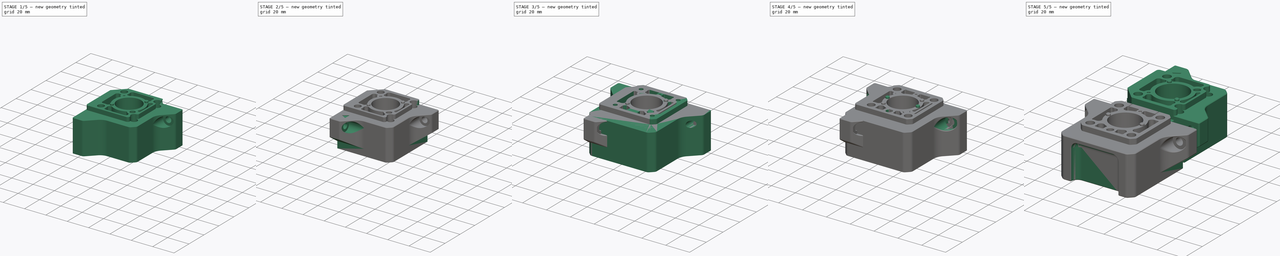
[diagram: build sequence overview — one tinted view per stage of 5, left to right]
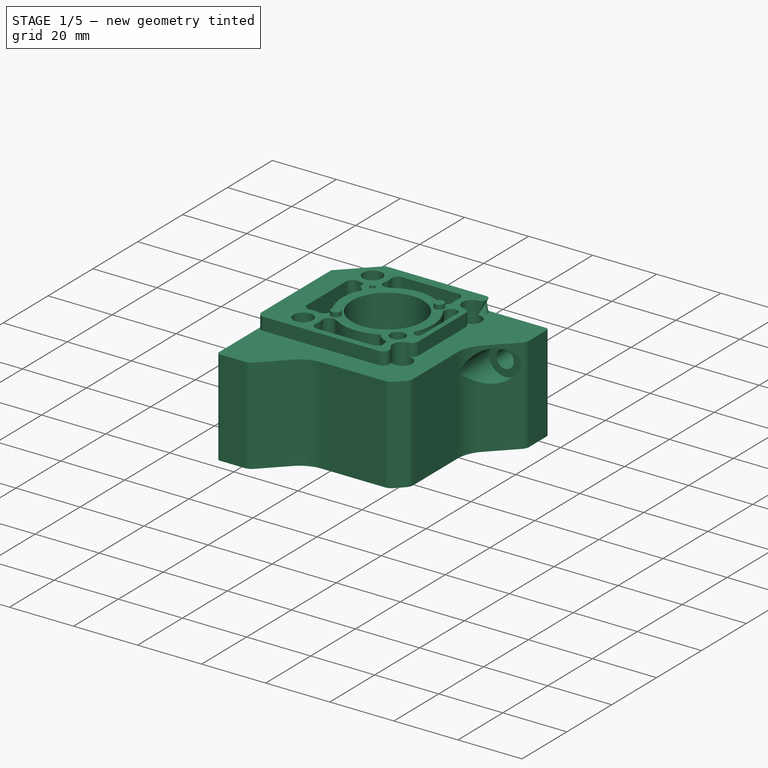
[diagram: stage 1 of 5 — iso view after this stage's code; geometry added in this stage tinted green]
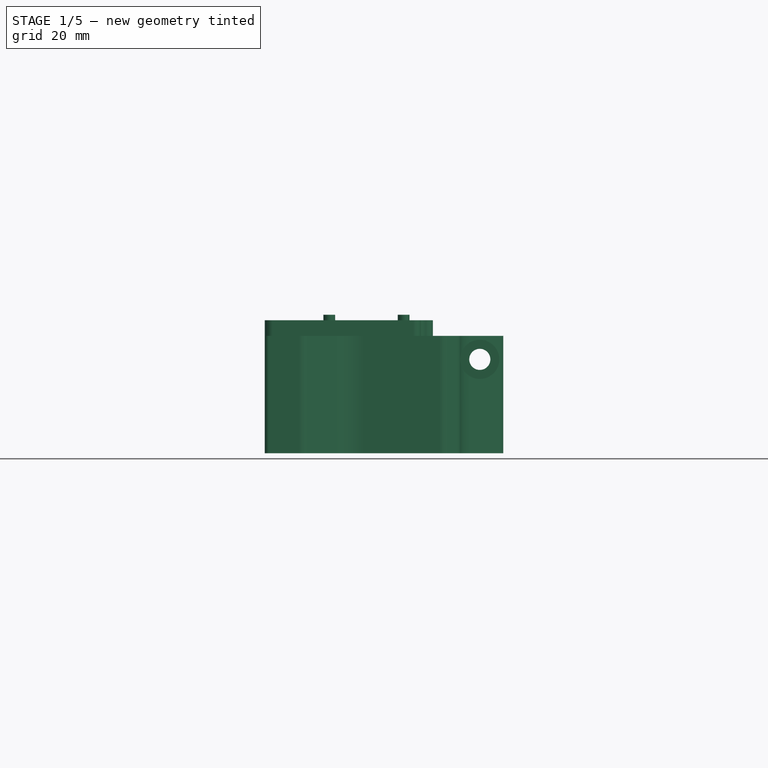
[diagram: stage 1 of 5 — front view after this stage's code; geometry added in this stage tinted green]
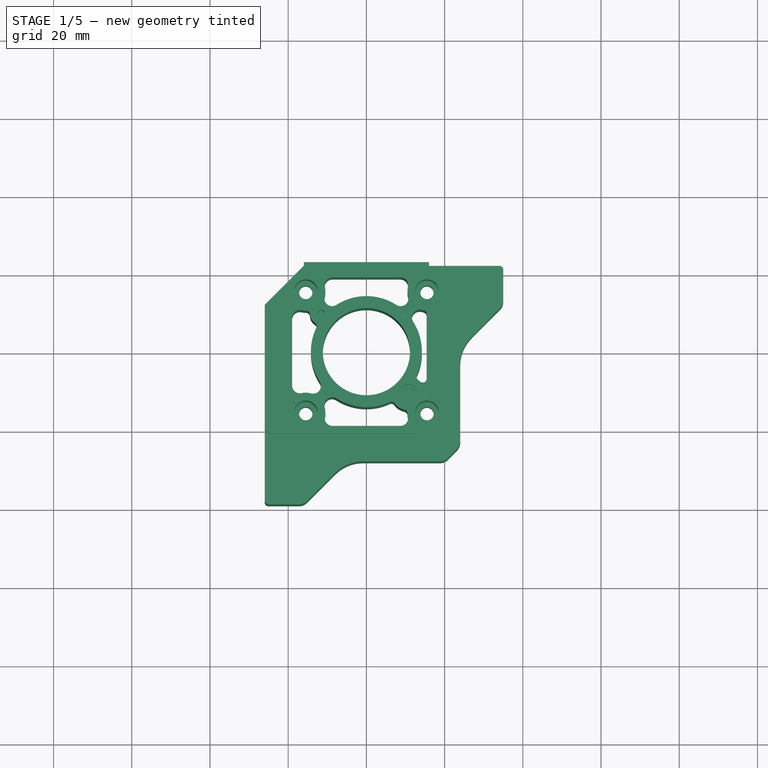
[diagram: stage 1 of 5 — top view after this stage's code; geometry added in this stage tinted green]
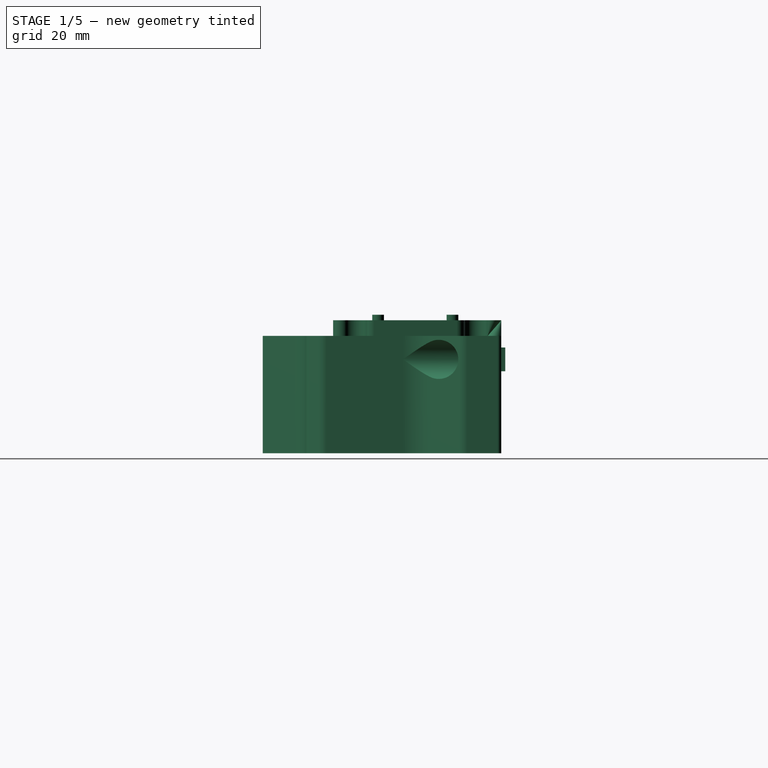
[diagram: stage 1 of 5 — right view after this stage's code; geometry added in this stage tinted green]
FCSTD DOCUMENT  (FreeCAD 1.1R20260414 (Git shallow))
Label: R2_z_stepper
License: All rights reserved
LicenseURL: https://en.wikipedia.org/wiki/All_rights_reserved
objects: Sketcher::SketchObject×33, PartDesign::Pocket×24, PartDesign::Chamfer×17, PartDesign::Pad×9, PartDesign::Fillet×3, App::Point×2, PartDesign::Body×2, App::Link×1, Part::Mirroring×1
note: 228 computed .brp shape members not serialized (recipe doc carries the construction recipe); baked Part::Feature solids carry a one-line shape summary decoded from their .brp

FEATURE [App::Point] Origin007  label="Origin009"
  Role = Origin
FEATURE [Sketcher::SketchObject] Sketch018  label="MainBodySketch001"
  ArcFitTolerance = 1e-06
  AttachmentSupport = -> [Origin006]
  ExternalTypes = [0]
  FullyConstrained = true
  MakeInternals = false
  MapMode = 5
  _ExternalGeoVersion = 1
  sketch-geometry (18):
    g0: LineSegment StartX=-16 StartY=22 StartZ=0 EndX=34 EndY=22 EndZ=0
    g1: LineSegment StartX=-0.865224 StartY=-28 StartZ=0 EndX=18.75 EndY=-28 EndZ=0
    g2: LineSegment StartX=20.8713 StartY=-27.1213 StartZ=0 EndX=23.1213 EndY=-24.8713 EndZ=0
    g3: LineSegment StartX=24 StartY=-22.75 StartZ=0 EndX=24 EndY=-3.13478 EndZ=0
    g4: LineSegment StartX=26.9289 StartY=3.93629 StartZ=0 EndX=34.1213 EndY=11.1287 EndZ=0
    g5: LineSegment StartX=35 StartY=13.25 StartZ=0 EndX=35 EndY=21 EndZ=0
    g6: ArcOfCircle CenterX=34 CenterY=21 CenterZ=0 NormalX=0 NormalY=0 NormalZ=1 AngleXU=0 Radius=1 StartAngle=1.8e-15 EndAngle=1.5708
    g7: ArcOfCircle CenterX=32 CenterY=13.25 CenterZ=0 NormalX=0 NormalY=0 NormalZ=1 AngleXU=0 Radius=3 StartAngle=5.49779 EndAngle=6.28319
    g8: ArcOfCircle CenterX=34 CenterY=-3.13478 CenterZ=0 NormalX=0 NormalY=0 NormalZ=1 AngleXU=0 Radius=10 StartAngle=2.35619 EndAngle=3.14159
    g9: ArcOfCircle CenterX=18.75 CenterY=-25 CenterZ=0 NormalX=0 NormalY=0 NormalZ=1 AngleXU=0 Radius=3 StartAngle=4.71239 EndAngle=5.49779
    g10: ArcOfCircle CenterX=21 CenterY=-22.75 CenterZ=0 NormalX=0 NormalY=0 NormalZ=1 AngleXU=0 Radius=3 StartAngle=5.49779 EndAngle=6.28319
    g11: LineSegment StartX=-16 StartY=22 StartZ=0 EndX=-26 EndY=12 EndZ=0
    g12: LineSegment StartX=-26 StartY=12 StartZ=0 EndX=-26 EndY=-38 EndZ=0
    g13: ArcOfCircle CenterX=-25 CenterY=-38 CenterZ=0 NormalX=0 NormalY=0 NormalZ=1 AngleXU=0 Radius=1 StartAngle=3.14159 EndAngle=4.71239
    g14: LineSegment StartX=-25 StartY=-39 StartZ=0 EndX=-17.25 EndY=-39 EndZ=0
    g15: ArcOfCircle CenterX=-17.25 CenterY=-36 CenterZ=0 NormalX=0 NormalY=0 NormalZ=1 AngleXU=0 Radius=3 StartAngle=4.71239 EndAngle=5.49779
    g16: LineSegment StartX=-15.1287 StartY=-38.1213 StartZ=0 EndX=-7.93629 EndY=-30.9289 EndZ=0
    g17: ArcOfCircle CenterX=-0.865224 CenterY=-38 CenterZ=0 NormalX=0 NormalY=0 NormalZ=1 AngleXU=0 Radius=10 StartAngle=1.5708 EndAngle=2.35619
  constraints (46):
    c: Horizontal(g1)
    c: Vertical(g3)
    c: Vertical(g5)
    c: Tangent(g6,g0) = 1.5708
    c: Tangent(g6,g5) = -1.5708
    c: Radius(g7) = 3
    c: Angle(g5,g4) = 2.35619
    c: Tangent(g7,g5) = -1.5708
    c: Tangent(g7,g4) = -1.5708
    c: Tangent(g8,g4) = 1.5708
    c: Tangent(g8,g3) = 1.5708
    c: Radius(g8) = 10
    c: Tangent(g9,g1) = -1.5708
    c: Tangent(g9,g2) = -1.5708
    c: Tangent(g10,g2) = -1.5708
    c: Tangent(g10,g3) = -1.5708
    c: DistanceY(g1,g-1) = 28
    c: Equal(g7,g10)
    c: Equal(g10,g9)
    c: Parallel(g4,g2)
    c: DistanceY(g1,g3) = 5.25
    c: Distance(g3,g-2) = 24
    c: Horizontal(g0)
    c: Coincident(g12,g11)
    c: Vertical(g12)
    c: Coincident(g0,g11)
    c: Distance(g-2,g12) = 26
    c: Tangent(g13,g12) = -1.5708
    c: Horizontal(g14)
    c: Tangent(g14,g13) = -1.5708
    c: Tangent(g17,g1) = 1.5708
    c: Tangent(g17,g16) = 1.5708
    c: Tangent(g16,g15) = -1.5708
    c: Tangent(g15,g14) = -1.5708
    c: DistanceY(g13,g0) = 61
    c: Distance(g0,g-1) = 22
    c: DistanceX(g11,g5) = 61
    c: Radius(g6) = 1
    c: Angle(g11,g0) = 2.35619
    c: DistanceX(g11,g0) = 10
    c: Equal(g8,g17)
    c: Parallel(g4,g16)
    c: Equal(g7,g15)
    c: Equal(g6,g13)
    c: DistanceY(g5,g0) = 8.75
    c: DistanceX(g12,g14) = 8.75
FEATURE [PartDesign::Pad] Pad006  label="MainBodyPad001"
  Direction = (0,0,1)
  Length = 30
  Length2 = 10
  Profile = -> Sketch018
  ReferenceAxis = -> Sketch018 [N_Axis]
  Refine = true
  SideType = 0
  Suppressed = false
  Type = 0
  Type2 = 0
FEATURE [Sketcher::SketchObject] Sketch019  label="RaisedBodySketch001"
  ArcFitTolerance = 1e-06
  AttachmentSupport = -> [Pad006]
  ExternalGeometry = -> [Pad006]
  ExternalTypes = [0,0]
  FullyConstrained = true
  MakeInternals = false
  MapMode = 5
  Placement = pos=(0,0,30) rot=(0,0,1;0rad)
  _ExternalGeoVersion = 1
  sketch-geometry (15):
    g0: LineSegment StartX=-16 StartY=22 StartZ=0 EndX=15.2466 EndY=22 EndZ=0
    g1: LineSegment StartX=-26 StartY=-19 StartZ=0 EndX=-26 EndY=12 EndZ=0
    g2: LineSegment StartX=-26 StartY=12 StartZ=0 EndX=-16 EndY=22 EndZ=0
    g3: ArcOfCircle CenterX=15.2466 CenterY=20.2466 CenterZ=0 NormalX=0 NormalY=0 NormalZ=1 AngleXU=0 Radius=1.75338 StartAngle=4.76572 EndAngle=7.85398
    g4: ArcOfCircle CenterX=-24 CenterY=-19 CenterZ=0 NormalX=0 NormalY=0 NormalZ=1 AngleXU=0 Radius=2 StartAngle=3.14159 EndAngle=4.71239
    g5: Circle [constr] CenterX=15.5 CenterY=15.5 CenterZ=0 NormalX=0 NormalY=0 NormalZ=1 AngleXU=0 Radius=3
    g6: Circle [constr] CenterX=15.5 CenterY=-15.5 CenterZ=0 NormalX=0 NormalY=0 NormalZ=1 AngleXU=0 Radius=3
    g7: ArcOfCircle CenterX=15.5 CenterY=15.5 CenterZ=0 NormalX=0 NormalY=0 NormalZ=1 AngleXU=0 Radius=3 StartAngle=1.62413 EndAngle=4.61222
    g8: ArcOfCircle CenterX=15 CenterY=10.5251 CenterZ=0 NormalX=0 NormalY=0 NormalZ=1 AngleXU=0 Radius=2 StartAngle=0 EndAngle=1.47063
    g9: LineSegment StartX=17 StartY=10.5251 StartZ=0 EndX=17 EndY=-10.5251 EndZ=0
    g10: ArcOfCircle CenterX=15.5 CenterY=-15.5 CenterZ=0 NormalX=0 NormalY=0 NormalZ=1 AngleXU=0 Radius=3 StartAngle=1.67096 EndAngle=3.91699
    g11: ArcOfCircle CenterX=15 CenterY=-10.5251 CenterZ=0 NormalX=0 NormalY=0 NormalZ=1 AngleXU=0 Radius=2 StartAngle=4.81256 EndAngle=6.28319
    g12: ArcOfCircle CenterX=11.9293 CenterY=-19 CenterZ=0 NormalX=0 NormalY=0 NormalZ=1 AngleXU=0 Radius=2 StartAngle=4.71239 EndAngle=7.05858
    g13: LineSegment StartX=11.9293 StartY=-21 StartZ=0 EndX=-24 EndY=-21 EndZ=0
    g14: LineSegment [constr] StartX=17 StartY=10.5251 StartZ=0 EndX=17 EndY=22 EndZ=0
  constraints (36):
    c: Horizontal(g0)
    c: Vertical(g1)
    c: Tangent(g0,g3) = 1.5708
    c: Tangent(g1,g4) = 1.5708
    c: Equal(g6,g5)
    c: Diameter(g5) = 6
    c: Symmetric(g5,g6,g-1)
    c: DistanceY(g6,g5) = 31
    c: Coincident(g7,g5)
    c: Distance(g6,g-2) = 15.5
    c: Tangent(g7,g8) = 1.5708
    c: Tangent(g3,g7) = 1.5708
    c: Equal(g5,g7)
    c: Vertical(g9)
    c: Tangent(g9,g8) = 1.5708
    c: Coincident(g10,g6)
    c: Tangent(g11,g9) = 1.5708
    c: Tangent(g11,g10) = 1.5708
    c: Tangent(g12,g10) = 1.5708
    c: Equal(g10,g6)
    c: Horizontal(g13)
    c: Tangent(g13,g12) = 1.5708
    c: Tangent(g4,g13) = 1.5708
    c: Coincident(g0,g2)
    c: Coincident(g0,g-3)
    c: Coincident(g2,g1)
    c: Coincident(g1,g-4)
    c: DistanceY(g4,g0) = 43
    c: DistanceX(g1,g8) = 43
    c: Radius(g8) = 2
    c: Equal(g8,g11)
    c: Equal(g8,g4)
    c: Radius(g12) = 2
    c: Tangent(g14,g8) = -1.5708
    c: Horizontal(g14,g0)
    c: Tangent(g3,g14)
FEATURE [PartDesign::Pad] Pad007  label="RaisedBodyPad001"
  BaseFeature = -> Pad006
  Direction = (0,0,1)
  Length = 4
  Length2 = 10
  Profile = -> Sketch019
  ReferenceAxis = -> Sketch019 [N_Axis]
  Refine = true
  SideType = 0
  Suppressed = false
  Type = 0
  Type2 = 0
FEATURE [Sketcher::SketchObject] Sketch020  label="MainCutoutsSketch001"
  ArcFitTolerance = 1e-06
  AttachmentSupport = -> [Pad007]
  ExternalTypes = [0,0,0,0,0,0,0,0,0,0,0,0,0]
  FullyConstrained = true
  MakeInternals = false
  MapMode = 5
  Placement = pos=(0,0,34) rot=(0,0,1;0rad)
  _ExternalGeoVersion = 1
  sketch-geometry (43):
    g0: Circle CenterX=-15.5 CenterY=15.5 CenterZ=0 NormalX=0 NormalY=0 NormalZ=1 AngleXU=0 Radius=1.7
    g1: Circle CenterX=15.5 CenterY=15.5 CenterZ=0 NormalX=0 NormalY=0 NormalZ=1 AngleXU=0 Radius=1.7
    g2: Circle CenterX=0 CenterY=0 CenterZ=0 NormalX=0 NormalY=0 NormalZ=1 AngleXU=0 Radius=11.15
    g3: Circle CenterX=15.5 CenterY=-15.5 CenterZ=0 NormalX=0 NormalY=0 NormalZ=1 AngleXU=0 Radius=1.7
    g4: Circle CenterX=-15.5 CenterY=-15.5 CenterZ=0 NormalX=0 NormalY=0 NormalZ=1 AngleXU=0 Radius=1.7
    g5: ArcOfCircle CenterX=0 CenterY=0 CenterZ=0 NormalX=0 NormalY=0 NormalZ=1 AngleXU=0 Radius=14.2 StartAngle=5.84977 EndAngle=6.85407
    g6: LineSegment StartX=-8.6626 StartY=19 StartZ=0 EndX=8.6626 EndY=19 EndZ=0
    g7: ArcOfCircle CenterX=0 CenterY=0 CenterZ=0 NormalX=0 NormalY=0 NormalZ=1 AngleXU=0 Radius=14.2 StartAngle=0.999911 EndAngle=2.14168
    g8: ArcOfCircle CenterX=-8.75411 CenterY=13.6311 CenterZ=0 NormalX=0 NormalY=0 NormalZ=1 AngleXU=0 Radius=2 StartAngle=2.87132 EndAngle=5.28327
    g9: ArcOfCircle CenterX=-15.5 CenterY=15.5 CenterZ=0 NormalX=0 NormalY=0 NormalZ=1 AngleXU=0 Radius=5 StartAngle=6.01291 EndAngle=6.49915
    g10: ArcOfCircle CenterX=-8.6626 CenterY=17 CenterZ=0 NormalX=0 NormalY=0 NormalZ=1 AngleXU=0 Radius=2 StartAngle=1.5708 EndAngle=3.35755
    g11: ArcOfCircle CenterX=8.6626 CenterY=17 CenterZ=0 NormalX=0 NormalY=0 NormalZ=1 AngleXU=0 Radius=2 StartAngle=6.06722 EndAngle=7.85398
    g12: ArcOfCircle CenterX=15.5 CenterY=15.5 CenterZ=0 NormalX=0 NormalY=0 NormalZ=1 AngleXU=0 Radius=5 StartAngle=2.92563 EndAngle=3.41186
    g13: ArcOfCircle CenterX=8.75411 CenterY=13.6311 CenterZ=0 NormalX=0 NormalY=0 NormalZ=1 AngleXU=0 Radius=2 StartAngle=4.1415 EndAngle=6.55346
    g14: LineSegment StartX=-8.6626 StartY=-19 StartZ=0 EndX=8.6626 EndY=-19 EndZ=0
    g15: ArcOfCircle CenterX=-8.75411 CenterY=-13.6311 CenterZ=0 NormalX=0 NormalY=0 NormalZ=1 AngleXU=0 Radius=2 StartAngle=0.999911 EndAngle=3.41186
    g16: ArcOfCircle CenterX=-15.5 CenterY=-15.5 CenterZ=0 NormalX=0 NormalY=0 NormalZ=1 AngleXU=0 Radius=5 StartAngle=6.06722 EndAngle=6.55346
    g17: ArcOfCircle CenterX=-8.6626 CenterY=-17 CenterZ=0 NormalX=0 NormalY=0 NormalZ=1 AngleXU=0 Radius=2 StartAngle=2.92563 EndAngle=4.71239
    g18: ArcOfCircle CenterX=8.6626 CenterY=-17 CenterZ=0 NormalX=0 NormalY=0 NormalZ=1 AngleXU=0 Radius=2 StartAngle=4.71239 EndAngle=6.49915
    g19: ArcOfCircle CenterX=15.5 CenterY=-15.5 CenterZ=0 NormalX=0 NormalY=0 NormalZ=1 AngleXU=0 Radius=5 StartAngle=3.1959 EndAngle=3.35755
    g20: ArcOfCircle CenterX=0 CenterY=0 CenterZ=0 NormalX=0 NormalY=0 NormalZ=1 AngleXU=0 Radius=14.2 StartAngle=4.1415 EndAngle=5.14581
    g21: ArcOfCircle CenterX=0 CenterY=0 CenterZ=0 NormalX=0 NormalY=0 NormalZ=1 AngleXU=0 Radius=14.2 StartAngle=2.69717 EndAngle=3.71248
    g22: ArcOfCircle CenterX=-15.5 CenterY=15.5 CenterZ=0 NormalX=0 NormalY=0 NormalZ=1 AngleXU=0 Radius=5 StartAngle=4.49643 EndAngle=4.72073
    g23: ArcOfCircle CenterX=-15.5 CenterY=-15.5 CenterZ=0 NormalX=0 NormalY=0 NormalZ=1 AngleXU=0 Radius=5 StartAngle=1.30053 EndAngle=1.78676
    g24: LineSegment StartX=-19 StartY=8.6626 StartZ=0 EndX=-19 EndY=-8.6626 EndZ=0
    g25: LineSegment StartX=15.4 StartY=9.6017 StartZ=0 EndX=15.4 EndY=-6.90467 EndZ=0
    g26: ArcOfCircle CenterX=-17 CenterY=8.6626 CenterZ=0 NormalX=0 NormalY=0 NormalZ=1 AngleXU=0 Radius=2 StartAngle=1.35484 EndAngle=3.14159
    g27: ArcOfCircle CenterX=-17 CenterY=-8.6626 CenterZ=0 NormalX=0 NormalY=0 NormalZ=1 AngleXU=0 Radius=2 StartAngle=3.14159 EndAngle=4.92835
    g28: ArcOfCircle CenterX=-13.6311 CenterY=-8.75411 CenterZ=0 NormalX=0 NormalY=0 NormalZ=1 AngleXU=0 Radius=2 StartAngle=4.44212 EndAngle=6.85407
    g29: ArcOfCircle CenterX=13.7945 CenterY=-6.38363 CenterZ=0 NormalX=0 NormalY=0 NormalZ=1 AngleXU=0 Radius=1 StartAngle=2.70817 EndAngle=4.07723
    g30: ArcOfCircle CenterX=14.4 CenterY=-6.90467 CenterZ=0 NormalX=0 NormalY=0 NormalZ=1 AngleXU=0 Radius=1 StartAngle=3.92637 EndAngle=6.28319
    g31: ArcOfCircle CenterX=14.4 CenterY=9.6017 CenterZ=0 NormalX=0 NormalY=0 NormalZ=1 AngleXU=0 Radius=1 StartAngle=8e-16 EndAngle=1.38642
    g32: ArcOfCircle CenterX=13.6311 CenterY=8.75411 CenterZ=0 NormalX=0 NormalY=0 NormalZ=1 AngleXU=0 Radius=2 StartAngle=1.30053 EndAngle=3.71248
    g33: ArcOfCircle CenterX=9.50885 CenterY=-15.8257 CenterZ=0 NormalX=0 NormalY=0 NormalZ=1 AngleXU=0 Radius=1 StartAngle=0.0543084 EndAngle=1.35378
    g34: ArcOfCircle CenterX=10.65 CenterY=-10.65 CenterZ=0 NormalX=0 NormalY=0 NormalZ=1 AngleXU=0 Radius=4.3 StartAngle=3.77676 EndAngle=4.49538
    g35: ArcOfCircle CenterX=6.38363 CenterY=-13.7945 CenterZ=0 NormalX=0 NormalY=0 NormalZ=1 AngleXU=0 Radius=1 StartAngle=0.635163 EndAngle=2.00422
    g36: ArcOfCircle CenterX=15.5 CenterY=15.5 CenterZ=0 NormalX=0 NormalY=0 NormalZ=1 AngleXU=0 Radius=5 StartAngle=4.44212 EndAngle=4.52801
    g37: ArcOfCircle CenterX=10.65 CenterY=-10.65 CenterZ=0 NormalX=0 NormalY=0 NormalZ=1 AngleXU=0 Radius=4.3 StartAngle=0.784775 EndAngle=0.935633
    g38: ArcOfCircle CenterX=-11.56 CenterY=9.78 CenterZ=0 NormalX=0 NormalY=0 NormalZ=1 AngleXU=0 Radius=2.9 StartAngle=3.2134 EndAngle=4.12435
    g39: ArcOfCircle CenterX=-13.7234 CenterY=6.53508 CenterZ=0 NormalX=0 NormalY=0 NormalZ=1 AngleXU=0 Radius=1 StartAngle=5.83876 EndAngle=7.26595
    g40: ArcOfCircle CenterX=-15.45 CenterY=9.50021 CenterZ=0 NormalX=0 NormalY=0 NormalZ=1 AngleXU=0 Radius=1 StartAngle=0.071803 EndAngle=1.57914
    g41: Circle [constr] CenterX=9.5 CenterY=9.5 CenterZ=0 NormalX=0 NormalY=0 NormalZ=1 AngleXU=0 Radius=1.5
    g42: Circle [constr] CenterX=-9.5 CenterY=-9.5 CenterZ=0 NormalX=0 NormalY=0 NormalZ=1 AngleXU=0 Radius=1.5
  constraints (108):
    c: Diameter(g1) = 3.4
    c: Equal(g1,g3)
    c: Equal(g3,g4)
    c: Equal(g4,g0)
    c: Diameter(g2) = 22.3
    c: Coincident(g2,g5)
    c: Coincident(g2,g-1)
    c: Symmetric(g4,g3,g-2)
    c: Symmetric(g0,g1,g-2)
    c: Symmetric(g1,g3,g-1)
    c: DistanceY(g4,g0) = 31
    c: DistanceX(g0,g1) = 31
    c: Horizontal(g6)
    c: Coincident(g7,g2)
    c: Radius(g7) = 14.2
    c: Tangent(g8,g7) = 1.5708
    c: Tangent(g9,g8) = 1.5708
    c: Tangent(g10,g9) = 1.5708
    c: Tangent(g10,g6) = 1.5708
    c: Distance(g6,g-1) = 19
    c: Coincident(g9,g0)
    c: Radius(g9) = 5
    c: Coincident(g12,g1)
    c: Tangent(g13,g12) = 1.5708
    c: Tangent(g12,g11) = 1.5708
    c: Equal(g8,g13)
    c: Horizontal(g14)
    c: Coincident(g16,g4)
    c: Tangent(g17,g14) = -1.5708
    c: Tangent(g17,g16) = 1.5708
    c: Tangent(g16,g15) = 1.5708
    c: Equal(g9,g16)
    c: DistanceY(g14,g-1) = 19
    c: Coincident(g19,g3)
    c: Coincident(g20,g2)
    c: Equal(g16,g19)
    c: Tangent(g19,g18) = 1.5708
    c: Coincident(g21,g2)
    c: Equal(g7,g21)
    c: Equal(g21,g5)
    c: Coincident(g22,g0)
    c: Coincident(g23,g4)
    c: Vertical(g24)
    c: Vertical(g25)
    c: Distance(g25,g-2) = 15.4
    c: Distance(g24,g-2) = 19
    c: Equal(g9,g22)
    c: Tangent(g28,g21) = 1.5708
    c: Tangent(g28,g23) = 1.5708
    c: Tangent(g27,g23) = 1.5708
    c: Tangent(g27,g24) = -1.5708
    c: Tangent(g26,g24) = -1.5708
    c: Tangent(g26,g22) = 1.5708
    c: Tangent(g32,g5) = 1.5708
    c: Tangent(g31,g25) = 1.5708
    c: Tangent(g30,g25) = 1.5708
    c: Tangent(g29,g5) = 1.5708
    c: Tangent(g18,g14) = -1.5708
    c: Tangent(g15,g20) = 1.5708
    c: Equal(g20,g7)
    c: Radius(g17) = 2
    c: Equal(g17,g15)
    c: Tangent(g35,g20) = 1.5708
    c: Tangent(g35,g34) = 1.5708
    c: Tangent(g34,g33) = 1.5708
    c: Tangent(g33,g19) = 1.5708
    c: Equal(g17,g18)
    c: Radius(g34) = 4.3
    c: Radius(g35) = 1
    c: Equal(g35,g33)
    c: Distance(g34,g-1) = 10.65
    c: Distance(g34,g-2) = 10.65
    c: Coincident(g36,g1)
    c: Tangent(g36,g31) = 1.5708
    c: Tangent(g36,g32) = 1.5708
    c: Equal(g17,g32)
    c: Equal(g31,g35)
    c: Equal(g30,g31)
    c: Equal(g30,g29)
    c: Coincident(g37,g34)
    c: Tangent(g37,g29) = 1.5708
    c: Tangent(g37,g30) = 1.5708
    c: Radius(g36) = 5
    c: Equal(g34,g37)
    c: Equal(g16,g23)
    c: Equal(g17,g28)
    c: Equal(g17,g27)
    c: Equal(g26,g27)
    c: Tangent(g22,g40) = 1.5708
    c: Tangent(g40,g38) = 1.5708
    c: Tangent(g39,g38) = 1.5708
    c: Tangent(g39,g21) = 1.5708
    c: Equal(g35,g40)
    c: Equal(g40,g39)
    c: Distance(g38,g-2) = 11.56
    c: Distance(g38,g-1) = 9.78
    c: Radius(g38) = 2.9
    c: Equal(g8,g10)
    c: Tangent(g11,g6) = 1.5708
    c: Equal(g11,g10)
    c: Equal(g9,g12)
    c: Tangent(g7,g13) = 1.5708
    c: Equal(g8,g17)
    c: Diameter(g41) = 3
    c: Equal(g41,g42)
    c: Symmetric(g42,g41,g2)
    c: DistanceY(g-1,g41) = 9.5
    c: DistanceX(g-1,g41) = 9.5
FEATURE [PartDesign::Pocket] Pocket018  label="MainCutoutsPocket001"
  BaseFeature = -> Pad007
  Direction = (0,0,-1)
  Length = 5
  Length2 = 5
  Profile = -> Sketch020
  ReferenceAxis = -> Sketch020 [N_Axis]
  Refine = true
  SideType = 0
  Suppressed = false
  Type = 1
  Type2 = 0
FEATURE [Sketcher::SketchObject] Sketch021  label="RearMountHolesSketch001"
  ArcFitTolerance = 1e-06
  AttachmentSupport = -> [Pocket018]
  ExternalGeometry = -> [Pocket018]
  ExternalTypes = [0]
  FullyConstrained = true
  MakeInternals = false
  MapMode = 5
  Placement = pos=(0,22,0) rot=(0,0.707107,0.707107;3.14159rad)
  _ExternalGeoVersion = 1
  sketch-geometry (1):
    g0: Circle CenterX=-29 CenterY=24 CenterZ=0 NormalX=0 NormalY=0 NormalZ=1 AngleXU=0 Radius=2.7
  constraints (3):
    c: Diameter(g0) = 5.4
    c: Distance(g0,g-2) = 29
    c: Distance(g0,g-1) = 24
FEATURE [PartDesign::Pocket] Pocket019  label="RearMountHolesPocket001"
  BaseFeature = -> Pocket018
  Direction = (0,-1,2e-16)
  Length = 5
  Length2 = 5
  Profile = -> Sketch021
  ReferenceAxis = -> Sketch021 [N_Axis]
  Refine = true
  SideType = 0
  Suppressed = false
  Type = 1
  Type2 = 0
FEATURE [Sketcher::SketchObject] Sketch022  label="CoverScrewHoleSketch001"
  ArcFitTolerance = 1e-06
  AttachmentSupport = -> [Pocket019]
  ExternalTypes = [0]
  FullyConstrained = true
  MakeInternals = false
  MapMode = 5
  Placement = pos=(0,0,34) rot=(0,0,1;0rad)
  _ExternalGeoVersion = 1
  sketch-geometry (1):
    g0: Circle CenterX=-11.56 CenterY=9.78 CenterZ=0 NormalX=0 NormalY=0 NormalZ=1 AngleXU=0 Radius=0.9
  constraints (3):
    c: Distance(g0,g-1) = 9.78
    c: Distance(g0,g-2) = 11.56
    c: Diameter(g0) = 1.8
FEATURE [PartDesign::Pocket] Pocket020  label="CoverScrewHolePocket001"
  BaseFeature = -> Pocket019
  Direction = (0,0,-1)
  Length = 10
  Length2 = 5
  Profile = -> Sketch022
  ReferenceAxis = -> Sketch022 [N_Axis]
  Refine = true
  SideType = 0
  Suppressed = false
  Type = 0
  Type2 = 0
FEATURE [Sketcher::SketchObject] Sketch023  label="CoverHeatsetHole1Sketch001"
  ArcFitTolerance = 1e-06
  AttachmentSupport = -> [Pocket020]
  ExternalTypes = [0]
  FullyConstrained = true
  MakeInternals = false
  MapMode = 5
  Placement = pos=(0,0,34) rot=(0,0,1;0rad)
  _ExternalGeoVersion = 1
  sketch-geometry (1):
    g0: Circle CenterX=10.65 CenterY=-10.65 CenterZ=0 NormalX=0 NormalY=0 NormalZ=1 AngleXU=0 Radius=2.35
  constraints (3):
    c: Distance(g0,g-1) = 10.65
    c: Distance(g0,g-2) = 10.65
    c: Diameter(g0) = 4.7
FEATURE [PartDesign::Pocket] Pocket021  label="CoverHeatsetHole1Pocket001"
  BaseFeature = -> Pocket020
  Direction = (0,0,-1)
  Length = 5
  Length2 = 5
  Profile = -> Sketch023
  ReferenceAxis = -> Sketch023 [N_Axis]
  Refine = true
  SideType = 0
  Suppressed = false
  Type = 0
  Type2 = 0
FEATURE [Sketcher::SketchObject] Sketch024  label="CoverHeatsetHole2Sketch001"
  ArcFitTolerance = 1e-06
  AttachmentSupport = -> [Pocket021]
  ExternalGeometry = -> [Pocket021]
  ExternalTypes = [0]
  FullyConstrained = true
  MakeInternals = false
  MapMode = 5
  Placement = pos=(0,0,34) rot=(0,0,1;0rad)
  _ExternalGeoVersion = 1
  sketch-geometry (1):
    g0: Circle CenterX=10.65 CenterY=-10.65 CenterZ=0 NormalX=0 NormalY=0 NormalZ=1 AngleXU=0 Radius=1.7
  constraints (2):
    c: Coincident(g0,g-3)
    c: Diameter(g0) = 3.4
FEATURE [PartDesign::Pocket] Pocket022  label="CoverHeatsetHole2Pocket001"
  BaseFeature = -> Pocket021
  Direction = (0,0,-1)
  Length = 8
  Length2 = 5
  Profile = -> Sketch024
  ReferenceAxis = -> Sketch024 [N_Axis]
  Refine = true
  SideType = 0
  Suppressed = false
  Type = 0
  Type2 = 0
FEATURE [Sketcher::SketchObject] Sketch025  label="MotorBoltRecessSketch001"
  ArcFitTolerance = 1e-06
  AttachmentSupport = -> [Pocket022]
  ExternalGeometry = -> [Pocket022]
  ExternalTypes = [0,0,0,0]
  FullyConstrained = true
  MakeInternals = false
  MapMode = 5
  Placement = pos=(0,0,34) rot=(0,0,1;0rad)
  _ExternalGeoVersion = 1
  sketch-geometry (4):
    g0: Circle CenterX=-15.5 CenterY=15.5 CenterZ=0 NormalX=0 NormalY=0 NormalZ=1 AngleXU=0 Radius=3
    g1: Circle CenterX=15.5 CenterY=15.5 CenterZ=0 NormalX=0 NormalY=0 NormalZ=1 AngleXU=0 Radius=3
    g2: Circle CenterX=15.5 CenterY=-15.5 CenterZ=0 NormalX=0 NormalY=0 NormalZ=1 AngleXU=0 Radius=3
    g3: Circle CenterX=-15.5 CenterY=-15.5 CenterZ=0 NormalX=0 NormalY=0 NormalZ=1 AngleXU=0 Radius=3
  constraints (8):
    c: Coincident(g0,g-3)
    c: Coincident(g1,g-4)
    c: Coincident(g2,g-5)
    c: Coincident(g3,g-6)
    c: Diameter(g1) = 6
    c: Equal(g1,g2)
    c: Equal(g2,g3)
    c: Equal(g3,g0)
FEATURE [PartDesign::Pocket] Pocket023  label="MotorBoltRecessPocket001"
  BaseFeature = -> Pocket022
  Direction = (0,0,-1)
  Length = 21
  Length2 = 5
  Profile = -> Sketch025
  ReferenceAxis = -> Sketch025 [N_Axis]
  Refine = true
  SideType = 0
  Suppressed = false
  Type = 0
  Type2 = 0
FEATURE [Sketcher::SketchObject] Sketch026  label="CoverLocatorsSketch001"
  ArcFitTolerance = 1e-06
  AttachmentSupport = -> [Pocket023]
  ExternalTypes = [0]
  FullyConstrained = true
  MakeInternals = false
  MapMode = 5
  Placement = pos=(0,0,34) rot=(0,0,1;0rad)
  _ExternalGeoVersion = 1
  sketch-geometry (3):
    g0: Circle CenterX=-9.51059 CenterY=-9.51059 CenterZ=0 NormalX=0 NormalY=0 NormalZ=1 AngleXU=0 Radius=1.5
    g1: Circle CenterX=9.51059 CenterY=9.51059 CenterZ=0 NormalX=0 NormalY=0 NormalZ=1 AngleXU=0 Radius=1.5
    g2: LineSegment [constr] StartX=-9.51059 StartY=-9.51059 StartZ=0 EndX=9.51059 EndY=9.51059 EndZ=0
  constraints (7):
    c: Diameter(g0) = 3
    c: Equal(g0,g1)
    c: Distance(g2,g2) = 26.9
    c: Angle(g-1,g2) = 0.785398
    c: Symmetric(g2,g2,g-1)
    c: Coincident(g2,g1)
    c: Coincident(g0,g2)
FEATURE [PartDesign::Pad] Pad008  label="CoverLocatorsPad001"
  BaseFeature = -> Pocket023
  Direction = (0,0,1)
  Length = 1.4
  Length2 = 10
  Profile = -> Sketch026
  ReferenceAxis = -> Sketch026 [N_Axis]
  Refine = true
  SideType = 0
  Suppressed = false
  Type = 0
  Type2 = 0
FEATURE [Sketcher::SketchObject] Sketch027  label="ExtrusionLocator1Sketch001"
  ArcFitTolerance = 1e-06
  AttachmentSupport = -> [Pad008]
  ExternalGeometry = -> [Pad008]
  ExternalTypes = [0]
  FullyConstrained = true
  MakeInternals = false
  MapMode = 5
  Placement = pos=(0,22,0) rot=(0,0.707107,0.707107;3.14159rad)
  _ExternalGeoVersion = 1
  sketch-geometry (4):
    g0: LineSegment StartX=-16 StartY=27.05 StartZ=0 EndX=-16 EndY=20.95 EndZ=0
    g1: LineSegment StartX=-16 StartY=20.95 StartZ=0 EndX=16 EndY=20.95 EndZ=0
    g2: LineSegment StartX=16 StartY=20.95 StartZ=0 EndX=16 EndY=27.05 EndZ=0
    g3: LineSegment StartX=16 StartY=27.05 StartZ=0 EndX=-16 EndY=27.05 EndZ=0
  constraints (12):
    c: Coincident(g0,g1)
    c: Coincident(g1,g2)
    c: Coincident(g2,g3)
    c: Coincident(g3,g0)
    c: Vertical(g0)
    c: Vertical(g2)
    c: Horizontal(g1)
    c: Horizontal(g3)
    c: DistanceX(g3,g3) = 32
    c: DistanceY(g2,g2) = 6.1
    c: DistanceY(g-1,g1) = 20.95
    c: PointOnObject(g1,g-3)
FEATURE [PartDesign::Pad] Pad009  label="ExtrusionLocator1Pad001"
  BaseFeature = -> Pad008
  Direction = (0,1,-2e-16)
  Length = 1
  Length2 = 10
  Profile = -> Sketch027
  ReferenceAxis = -> Sketch027 [N_Axis]
  Refine = true
  SideType = 0
  Suppressed = false
  Type = 0
  Type2 = 0
FEATURE [Sketcher::SketchObject] Sketch029  label="RearMountBoltRecess1Sketch001"
  ArcFitTolerance = 1e-06
  AttachmentSupport = -> [Pad009]
  ExternalTypes = [0,0]
  FullyConstrained = true
  MakeInternals = false
  MapMode = 5
  Placement = pos=(0,-28,0) rot=(1,0,0;1.5708rad)
  _ExternalGeoVersion = 1
  sketch-geometry (1):
    g0: Circle CenterX=29 CenterY=24 CenterZ=0 NormalX=0 NormalY=0 NormalZ=1 AngleXU=0 Radius=5
  constraints (2):
    c: Coincident(g0,g-3)
    c: Diameter(g0) = 10
FEATURE [PartDesign::Pocket] Pocket024  label="RearMountBoltRecess1Pocket001"
  BaseFeature = -> Pad009
  Direction = (0,1,-2e-16)
  Length = 39
  Length2 = 5
  Profile = -> Sketch029
  ReferenceAxis = -> Sketch029 [N_Axis]
  Refine = true
  SideType = 0
  Suppressed = false
  Type = 0
  Type2 = 0
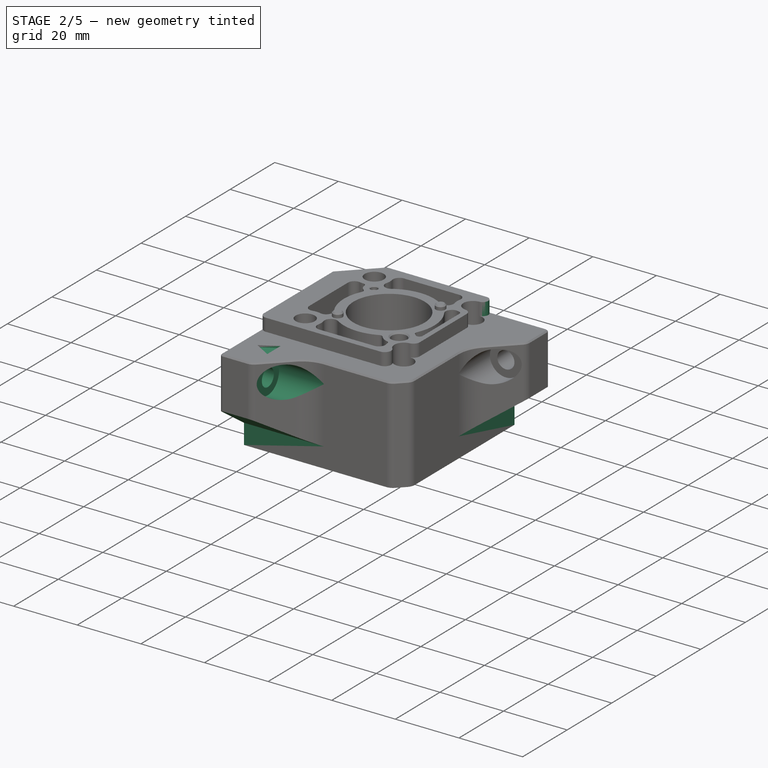
[diagram: stage 2 of 5 — iso view after this stage's code; geometry added in this stage tinted green]
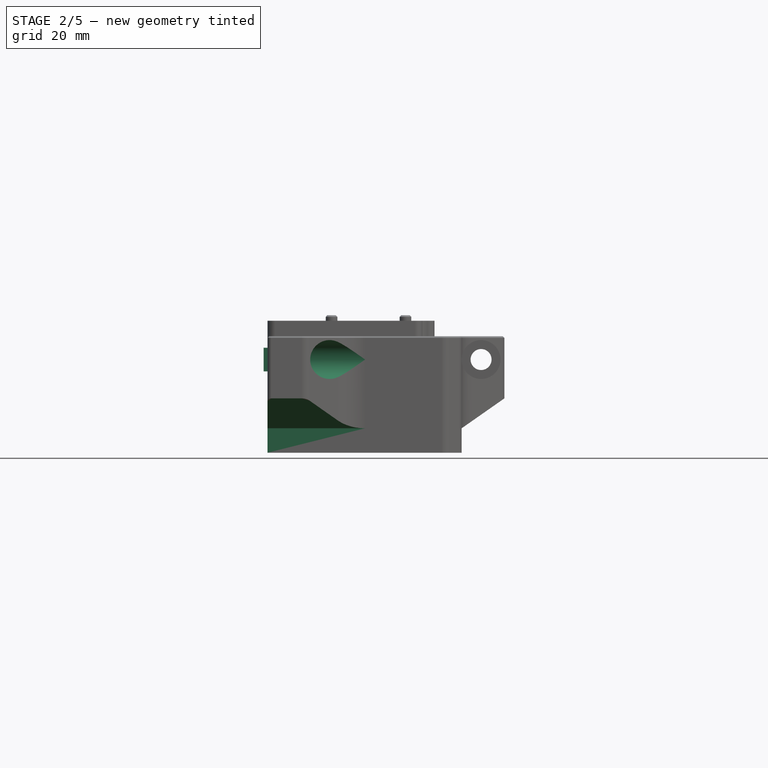
[diagram: stage 2 of 5 — front view after this stage's code; geometry added in this stage tinted green]
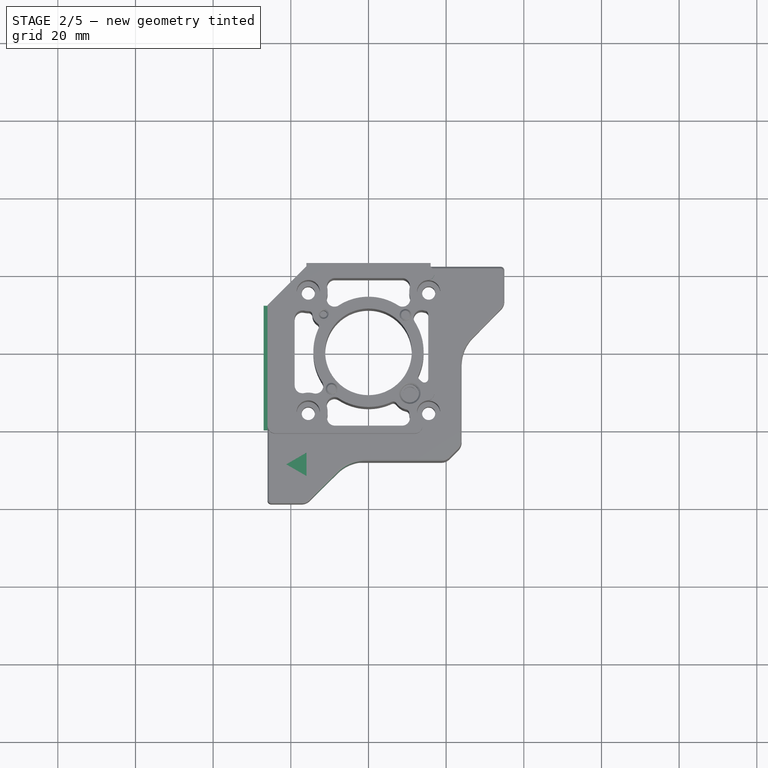
[diagram: stage 2 of 5 — top view after this stage's code; geometry added in this stage tinted green]
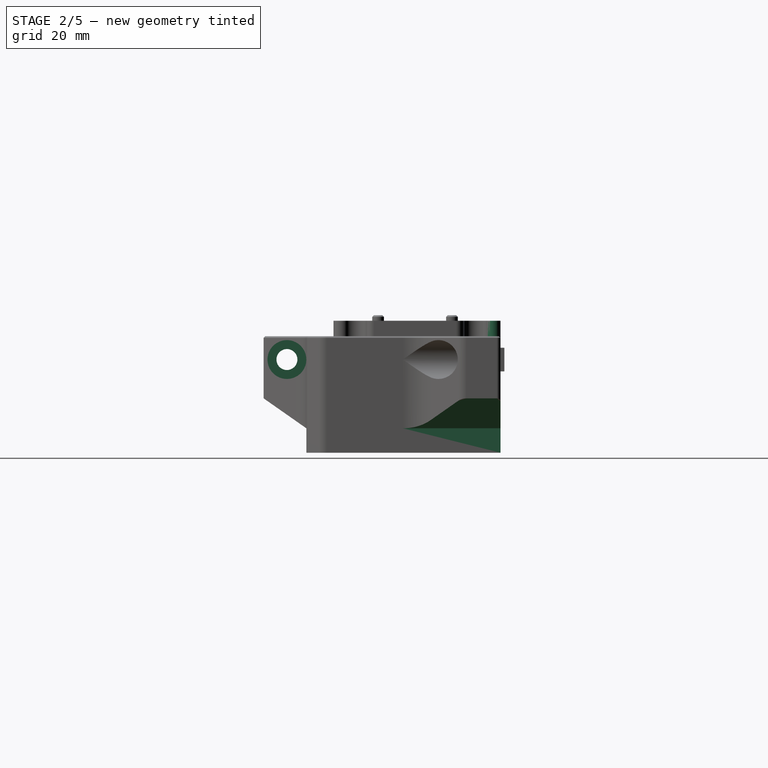
[diagram: stage 2 of 5 — right view after this stage's code; geometry added in this stage tinted green]
FEATURE [Sketcher::SketchObject] Sketch030  label="RearMountHoles2Sketch001"
  ArcFitTolerance = 1e-06
  AttachmentSupport = -> [Pocket024]
  ExternalTypes = [0]
  FullyConstrained = true
  MakeInternals = false
  MapMode = 5
  Placement = pos=(-26,0,0) rot=(0.57735,-0.57735,-0.57735;2.0944rad)
  _ExternalGeoVersion = 1
  sketch-geometry (1):
    g0: Circle CenterX=33 CenterY=24 CenterZ=0 NormalX=0 NormalY=0 NormalZ=1 AngleXU=0 Radius=2.7
  constraints (3):
    c: Diameter(g0) = 5.4
    c: Distance(g0,g-2) = 33
    c: Distance(g0,g-1) = 24
FEATURE [PartDesign::Pocket] Pocket025  label="RearMountHoles2Pocket001"
  BaseFeature = -> Pocket024
  Direction = (1,0,0)
  Length = 5
  Length2 = 5
  Profile = -> Sketch030
  ReferenceAxis = -> Sketch030 [N_Axis]
  Refine = true
  SideType = 0
  Suppressed = false
  Type = 1
  Type2 = 0
FEATURE [Sketcher::SketchObject] Sketch031  label="RearMountBoltRecess2Sketch001"
  ArcFitTolerance = 1e-06
  AttachmentSupport = -> [Pocket025]
  ExternalGeometry = -> [Pocket025]
  ExternalTypes = [0]
  FullyConstrained = true
  MakeInternals = false
  MapMode = 5
  Placement = pos=(24,0,0) rot=(0.57735,0.57735,0.57735;2.0944rad)
  _ExternalGeoVersion = 1
  sketch-geometry (1):
    g0: Circle CenterX=-33 CenterY=24 CenterZ=0 NormalX=0 NormalY=0 NormalZ=1 AngleXU=0 Radius=5
  constraints (2):
    c: Coincident(g0,g-3)
    c: Diameter(g0) = 10
FEATURE [PartDesign::Pocket] Pocket026  label="RearMountBoltRecess2Pocket001"
  BaseFeature = -> Pocket025
  Direction = (-1,0,0)
  Length = 39
  Length2 = 5
  Profile = -> Sketch031
  ReferenceAxis = -> Sketch031 [N_Axis]
  Refine = true
  SideType = 0
  Suppressed = false
  Type = 0
  Type2 = 0
FEATURE [Sketcher::SketchObject] Sketch032  label="ExtrusionLocator2Sketch001"
  ArcFitTolerance = 1e-06
  AttachmentSupport = -> [Pocket026]
  ExternalGeometry = -> [Pocket026]
  ExternalTypes = [0,0]
  FullyConstrained = true
  MakeInternals = false
  MapMode = 5
  Placement = pos=(-26,0,0) rot=(0.57735,-0.57735,-0.57735;2.0944rad)
  _ExternalGeoVersion = 1
  sketch-geometry (4):
    g0: LineSegment StartX=-12 StartY=27.05 StartZ=0 EndX=-12 EndY=20.95 EndZ=0
    g1: LineSegment StartX=-12 StartY=20.95 StartZ=0 EndX=20 EndY=20.95 EndZ=0
    g2: LineSegment StartX=20 StartY=20.95 StartZ=0 EndX=20 EndY=27.05 EndZ=0
    g3: LineSegment StartX=20 StartY=27.05 StartZ=0 EndX=-12 EndY=27.05 EndZ=0
  constraints (12):
    c: Coincident(g0,g1)
    c: Coincident(g1,g2)
    c: Coincident(g2,g3)
    c: Coincident(g3,g0)
    c: Vertical(g0)
    c: Vertical(g2)
    c: Horizontal(g1)
    c: Horizontal(g3)
    c: PointOnObject(g0,g-3)
    c: Horizontal(g-4,g0)
    c: Horizontal(g-4,g0)
    c: DistanceX(g3,g3) = 32
FEATURE [PartDesign::Pad] Pad010  label="ExtrusionLocator2Pad001"
  BaseFeature = -> Pocket026
  Direction = (-1,0,0)
  Length = 1
  Length2 = 10
  Profile = -> Sketch032
  ReferenceAxis = -> Sketch032 [N_Axis]
  Refine = true
  SideType = 0
  Suppressed = false
  Type = 0
  Type2 = 0
FEATURE [Sketcher::SketchObject] Sketch033  label="CoverScrewHoleCountersinkSketch001"
  ArcFitTolerance = 1e-06
  AttachmentSupport = -> [Pocket022]
  ExternalGeometry = -> [Pocket022]
  ExternalTypes = [0]
  FullyConstrained = true
  MakeInternals = false
  MapMode = 5
  Placement = pos=(0,0,34) rot=(0,0,1;0rad)
  _ExternalGeoVersion = 1
  sketch-geometry (1):
    g0: Circle CenterX=-11.56 CenterY=9.78 CenterZ=0 NormalX=0 NormalY=0 NormalZ=1 AngleXU=0 Radius=1.1
  constraints (2):
    c: Coincident(g0,g-3)
    c: Diameter(g0) = 2.2
FEATURE [PartDesign::Pocket] Pocket027  label="CoverScrewHoleCountersinkPocket001"
  BaseFeature = -> Pad010
  Direction = (0,0,-1)
  Length = 1
  Length2 = 5
  Profile = -> Sketch033
  ReferenceAxis = -> Sketch033 [N_Axis]
  Refine = true
  SideType = 0
  Suppressed = false
  Type = 0
  Type2 = 0
FEATURE [Sketcher::SketchObject] Sketch034  label="ArrowSketch034"
  ArcFitTolerance = 1e-06
  AttachmentSupport = -> [Pocket027]
  ExternalTypes = [0]
  FullyConstrained = true
  MakeInternals = false
  MapMode = 5
  Placement = pos=(0,0,30) rot=(0,0,1;0rad)
  _ExternalGeoVersion = 1
  sketch-geometry (4):
    g0: LineSegment StartX=-15.9679 StartY=-25.9 StartZ=0 EndX=-21.1641 EndY=-28.9 EndZ=0
    g1: LineSegment StartX=-21.1641 StartY=-28.9 StartZ=0 EndX=-15.9679 EndY=-31.9 EndZ=0
    g2: LineSegment StartX=-15.9679 StartY=-31.9 StartZ=0 EndX=-15.9679 EndY=-25.9 EndZ=0
    g3: Circle [constr] CenterX=-17.7 CenterY=-28.9 CenterZ=0 NormalX=0 NormalY=0 NormalZ=1 AngleXU=0 Radius=3.4641
  constraints (12):
    c: Coincident(g0,g1)
    c: Coincident(g1,g2)
    c: Coincident(g2,g0)
    c: Equal(g0,g1)
    c: Equal(g0,g2)
    c: PointOnObject(g0,g3)
    c: PointOnObject(g1,g3)
    c: PointOnObject(g2,g3)
    c: Vertical(g2)
    c: DistanceY(g2,g2) = 6
    c: Distance(g0,g-1) = 25.9
    c: Distance(g3,g-2) = 17.7
FEATURE [PartDesign::Pocket] Pocket028  label="ArrowPocket028"
  BaseFeature = -> Pocket027
  Direction = (0,0,-1)
  Length = 0.6
  Length2 = 5
  Profile = -> Sketch034
  ReferenceAxis = -> Sketch034 [N_Axis]
  Refine = true
  SideType = 0
  Suppressed = false
  Type = 0
  Type2 = 0
FEATURE [PartDesign::Chamfer] Chamfer010
  Angle = 45
  Base = -> Pocket028 [Edge267,Edge275,Edge137]
  BaseFeature = -> Pocket028
  ChamferType = 0
  FlipDirection = false
  Refine = true
  Size = 0.4
  Size2 = 1
  SupportTransform = false
  Suppressed = false
  UseAllEdges = false
FEATURE [PartDesign::Chamfer] Chamfer011
  Angle = 45
  Base = -> Chamfer010 [Edge254,Edge36]
  BaseFeature = -> Chamfer010
  ChamferType = 0
  FlipDirection = false
  Refine = true
  Size = 0.19
  Size2 = 1
  SupportTransform = false
  Suppressed = false
  UseAllEdges = false
FEATURE [PartDesign::Chamfer] Chamfer012
  Angle = 45
  Base = -> Chamfer011 [Edge206]
  BaseFeature = -> Chamfer011
  ChamferType = 0
  FlipDirection = false
  Refine = true
  Size = 0.4
  Size2 = 1
  SupportTransform = false
  Suppressed = false
  UseAllEdges = false
FEATURE [PartDesign::Chamfer] Chamfer013
  Angle = 45
  Base = -> Chamfer012 [Edge58,Edge41,Edge35,Edge47,Edge56,Edge60,Edge75,Edge72,Edge57]
  BaseFeature = -> Chamfer012
  ChamferType = 0
  FlipDirection = false
  Refine = true
  Size = 0.4
  Size2 = 1
  SupportTransform = false
  Suppressed = false
  UseAllEdges = false
FEATURE [Sketcher::SketchObject] Sketch035
  ArcFitTolerance = 1e-06
  AttachmentSupport = -> [Chamfer013]
  ExternalGeometry = -> [Chamfer013]
  ExternalTypes = [0,0,0]
  FullyConstrained = true
  MakeInternals = false
  MapMode = 5
  Placement = pos=(-26,0,0) rot=(0.57735,-0.57735,-0.57735;2.0944rad)
  _ExternalGeoVersion = 1
  sketch-geometry (4):
    g0: LineSegment StartX=28 StartY=0 StartZ=0 EndX=28 EndY=6.29772 EndZ=0
    g1: LineSegment StartX=28 StartY=6.29772 StartZ=0 EndX=39 EndY=14 EndZ=0
    g2: LineSegment StartX=39 StartY=14 StartZ=0 EndX=39 EndY=0 EndZ=0
    g3: LineSegment StartX=39 StartY=0 StartZ=0 EndX=28 EndY=0 EndZ=0
  constraints (10):
    c: Coincident(g0,g-3)
    c: Vertical(g0)
    c: Coincident(g1,g0)
    c: Coincident(g2,g1)
    c: Vertical(g2)
    c: Coincident(g3,g2)
    c: Coincident(g3,g0)
    c: Coincident(g2,g-4)
    c: DistanceY(g1,g-5) = 10
    c: Angle(g3,g1) = 0.610865
FEATURE [PartDesign::Pocket] Pocket029
  BaseFeature = -> Chamfer013
  Direction = (1,0,0)
  Length = 5
  Length2 = 5
  Profile = -> Sketch035
  ReferenceAxis = -> Sketch035 [N_Axis]
  Refine = true
  SideType = 0
  Suppressed = false
  Type = 1
  Type2 = 0
FEATURE [Sketcher::SketchObject] Sketch036
  ArcFitTolerance = 1e-06
  AttachmentSupport = -> [Pocket029]
  ExternalGeometry = -> [Pocket029]
  ExternalTypes = [0,0,0]
  FullyConstrained = true
  MakeInternals = false
  MapMode = 5
  Placement = pos=(0,22,0) rot=(0,0.707107,0.707107;3.14159rad)
  _ExternalGeoVersion = 1
  sketch-geometry (4):
    g0: LineSegment StartX=-35 StartY=-2e-16 StartZ=0 EndX=-35 EndY=14 EndZ=0
    g1: LineSegment StartX=-35 StartY=14 StartZ=0 EndX=-24 EndY=6.29772 EndZ=0
    g2: LineSegment StartX=-24 StartY=6.29772 StartZ=0 EndX=-24 EndY=-5.3e-15 EndZ=0
    g3: LineSegment StartX=-24 StartY=-5.3e-15 StartZ=0 EndX=-35 EndY=-2e-16 EndZ=0
  constraints (10):
    c: Coincident(g0,g-5)
    c: Vertical(g0)
    c: Coincident(g1,g0)
    c: Coincident(g2,g1)
    c: Vertical(g2)
    c: Coincident(g3,g2)
    c: Coincident(g3,g0)
    c: Angle(g1,g3) = 0.610865
    c: DistanceY(g0,g-4) = 10
    c: Coincident(g2,g-6)
FEATURE [PartDesign::Pocket] Pocket030
  BaseFeature = -> Pocket029
  Direction = (0,-1,2e-16)
  Length = 5
  Length2 = 5
  Profile = -> Sketch036
  ReferenceAxis = -> Sketch036 [N_Axis]
  Refine = true
  SideType = 0
  Suppressed = false
  Type = 1
  Type2 = 0
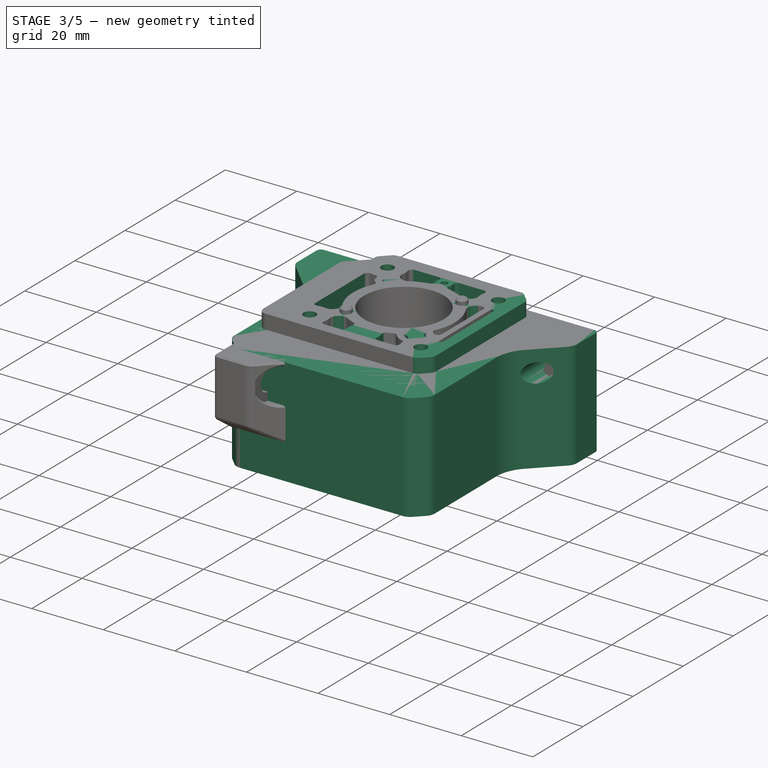
[diagram: stage 3 of 5 — iso view after this stage's code; geometry added in this stage tinted green]
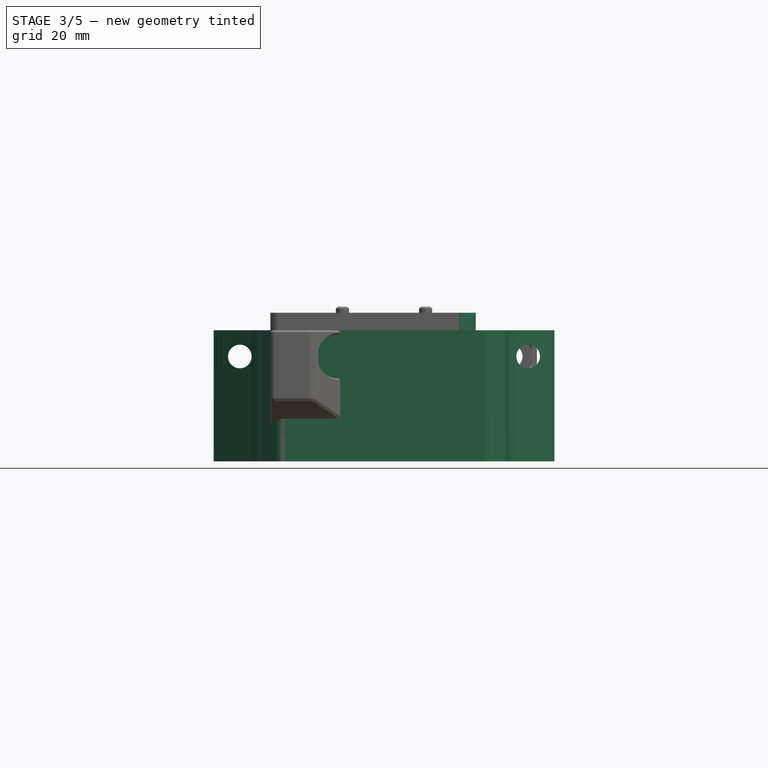
[diagram: stage 3 of 5 — front view after this stage's code; geometry added in this stage tinted green]
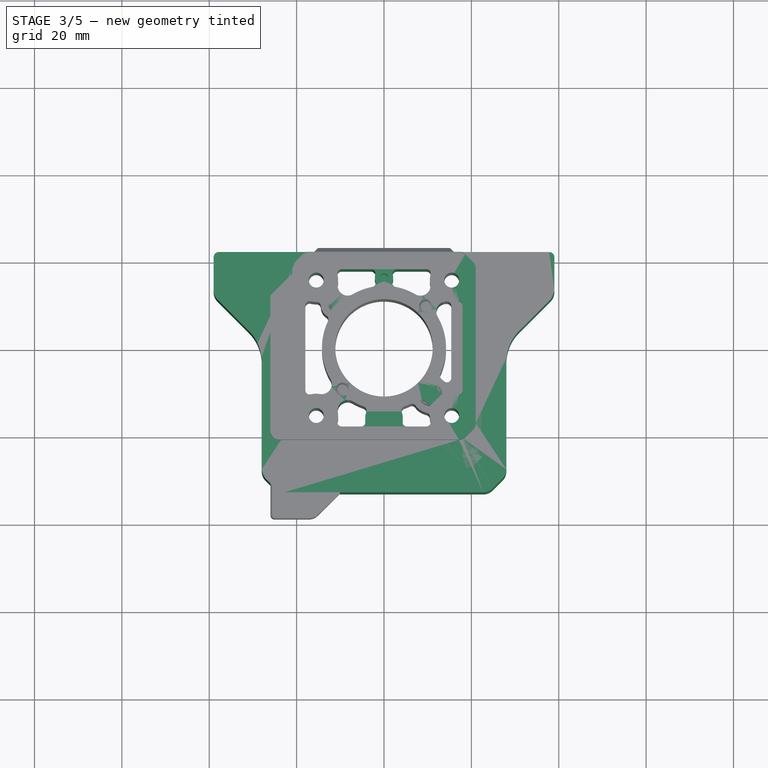
[diagram: stage 3 of 5 — top view after this stage's code; geometry added in this stage tinted green]
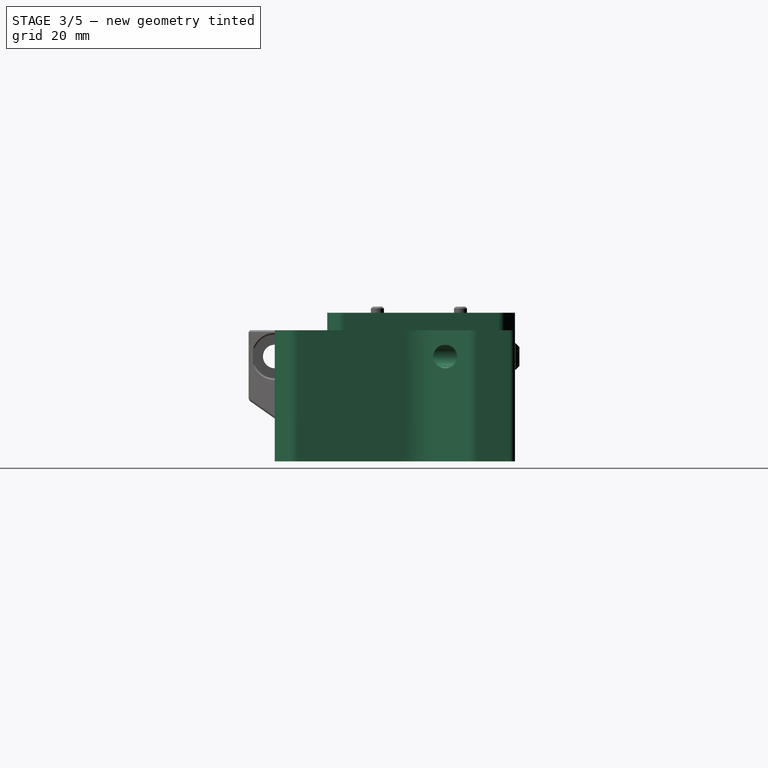
[diagram: stage 3 of 5 — right view after this stage's code; geometry added in this stage tinted green]
FEATURE [App::Point] Origin005  label="Origin006"
  Role = Origin
FEATURE [Sketcher::SketchObject] Sketch004  label="MainBodySketch"
  ArcFitTolerance = 1e-06
  AttachmentSupport = -> [Origin004]
  ExternalTypes = [0]
  FullyConstrained = true
  MakeInternals = false
  MapMode = 5
  _ExternalGeoVersion = 1
  sketch-geometry (20):
    g0: LineSegment StartX=-37.8 StartY=22 StartZ=0 EndX=37.8 EndY=22 EndZ=0
    g1: LineSegment StartX=-39 StartY=20.8 StartZ=0 EndX=-39 EndY=13.25 EndZ=0
    g2: LineSegment StartX=-38.1213 StartY=11.1287 StartZ=0 EndX=-30.9289 EndY=3.93629 EndZ=0
    g3: LineSegment StartX=-28 StartY=-3.13478 StartZ=0 EndX=-28 EndY=-27.75 EndZ=0
    g4: LineSegment StartX=-27.1213 StartY=-29.8713 StartZ=0 EndX=-24.8713 EndY=-32.1213 EndZ=0
    g5: LineSegment StartX=-22.75 StartY=-33 StartZ=0 EndX=22.75 EndY=-33 EndZ=0
    g6: LineSegment StartX=24.8713 StartY=-32.1213 StartZ=0 EndX=27.1213 EndY=-29.8713 EndZ=0
    g7: LineSegment StartX=28 StartY=-27.75 StartZ=0 EndX=28 EndY=-3.13478 EndZ=0
    g8: LineSegment StartX=30.9289 StartY=3.93629 StartZ=0 EndX=38.1213 EndY=11.1287 EndZ=0
    g9: LineSegment StartX=39 StartY=13.25 StartZ=0 EndX=39 EndY=20.8 EndZ=0
    g10: ArcOfCircle CenterX=-37.8 CenterY=20.8 CenterZ=0 NormalX=0 NormalY=0 NormalZ=1 AngleXU=0 Radius=1.2 StartAngle=1.5708 EndAngle=3.14159
    g11: ArcOfCircle CenterX=37.8 CenterY=20.8 CenterZ=0 NormalX=0 NormalY=0 NormalZ=1 AngleXU=0 Radius=1.2 StartAngle=0 EndAngle=1.5708
    g12: ArcOfCircle CenterX=36 CenterY=13.25 CenterZ=0 NormalX=0 NormalY=0 NormalZ=1 AngleXU=0 Radius=3 StartAngle=5.49779 EndAngle=6.28319
    g13: ArcOfCircle CenterX=38 CenterY=-3.13478 CenterZ=0 NormalX=0 NormalY=0 NormalZ=1 AngleXU=0 Radius=10 StartAngle=2.35619 EndAngle=3.14159
    g14: ArcOfCircle CenterX=-36 CenterY=13.25 CenterZ=0 NormalX=0 NormalY=0 NormalZ=1 AngleXU=0 Radius=3 StartAngle=3.14159 EndAngle=3.92699
    g15: ArcOfCircle CenterX=-38 CenterY=-3.13478 CenterZ=0 NormalX=0 NormalY=0 NormalZ=1 AngleXU=0 Radius=10 StartAngle=1e-16 EndAngle=0.785398
    g16: ArcOfCircle CenterX=-25 CenterY=-27.75 CenterZ=0 NormalX=0 NormalY=0 NormalZ=1 AngleXU=0 Radius=3 StartAngle=3.14159 EndAngle=3.92699
    g17: ArcOfCircle CenterX=-22.75 CenterY=-30 CenterZ=0 NormalX=0 NormalY=0 NormalZ=1 AngleXU=0 Radius=3 StartAngle=3.92699 EndAngle=4.71239
    g18: ArcOfCircle CenterX=22.75 CenterY=-30 CenterZ=0 NormalX=0 NormalY=0 NormalZ=1 AngleXU=0 Radius=3 StartAngle=4.71239 EndAngle=5.49779
    g19: ArcOfCircle CenterX=25 CenterY=-27.75 CenterZ=0 NormalX=0 NormalY=0 NormalZ=1 AngleXU=0 Radius=3 StartAngle=5.49779 EndAngle=6.28319
  constraints (49):
    c: Vertical(g1)
    c: Vertical(g3)
    c: Horizontal(g5)
    c: Vertical(g7)
    c: Vertical(g9)
    c: Tangent(g10,g0) = 1.5708
    c: Tangent(g10,g1) = -1.5708
    c: Tangent(g11,g0) = 1.5708
    c: Tangent(g11,g9) = -1.5708
    c: Distance(g-1,g0) = 22
    c: DistanceX(g1,g9) = 78
    c: Radius(g10) = 1.2
    c: Symmetric(g0,g0,g-2)
    c: Equal(g10,g11)
    c: Radius(g12) = 3
    c: Angle(g9,g8) = 2.35619
    c: Tangent(g12,g9) = -1.5708
    c: Tangent(g12,g8) = -1.5708
    c: Tangent(g13,g8) = 1.5708
    c: Tangent(g13,g7) = 1.5708
    c: Tangent(g14,g1) = -1.5708
    c: Tangent(g14,g2) = -1.5708
    c: Angle(g2,g1) = 2.35619
    c: Equal(g12,g14)
    c: Horizontal(g2,g8)
    c: DistanceY(g1,g0) = 8.75
    c: Horizontal(g1,g9)
    c: Radius(g13) = 10
    c: Tangent(g15,g2) = 1.5708
    c: Tangent(g15,g3) = 1.5708
    c: Equal(g15,g13)
    c: DistanceX(g3,g7) = 56
    c: Tangent(g16,g3) = -1.5708
    c: Tangent(g16,g4) = -1.5708
    c: Tangent(g17,g4) = -1.5708
    c: Tangent(g17,g5) = -1.5708
    c: Tangent(g18,g5) = -1.5708
    c: Tangent(g18,g6) = -1.5708
    c: Tangent(g19,g6) = -1.5708
    c: Tangent(g19,g7) = -1.5708
    c: DistanceY(g5,g-1) = 33
    c: Equal(g12,g19)
    c: Equal(g19,g18)
    c: Equal(g18,g17)
    c: Equal(g17,g16)
    c: Parallel(g2,g4)
    c: Parallel(g8,g6)
    c: DistanceY(g5,g7) = 5.25
    c: Horizontal(g7,g3)
FEATURE [PartDesign::Pad] Pad002  label="MainBodyPad"
  Direction = (0,0,1)
  Length = 30
  Length2 = 10
  Profile = -> Sketch004
  ReferenceAxis = -> Sketch004 [N_Axis]
  Refine = true
  SideType = 0
  Suppressed = false
  Type = 0
  Type2 = 0
FEATURE [Sketcher::SketchObject] Sketch005  label="RaisedBodySketch"
  ArcFitTolerance = 1e-06
  AttachmentSupport = -> [Pad002]
  ExternalTypes = [0,0,0,0,0,0,0,0,0,0,0,0,0]
  FullyConstrained = true
  MakeInternals = false
  MapMode = 5
  Placement = pos=(0,0,30) rot=(0,0,1;0rad)
  _ExternalGeoVersion = 1
  sketch-geometry (24):
    g0: LineSegment StartX=-17.1615 StartY=22 StartZ=0 EndX=17.1615 EndY=22 EndZ=0
    g1: LineSegment StartX=18.5757 StartY=21.4142 StartZ=0 EndX=20.4142 EndY=19.5757 EndZ=0
    g2: LineSegment StartX=21 StartY=18.1615 StartZ=0 EndX=21 EndY=-17.1615 EndZ=0
    g3: LineSegment StartX=20.4142 StartY=-18.5757 StartZ=0 EndX=18.5757 EndY=-20.4142 EndZ=0
    g4: LineSegment StartX=17.1615 StartY=-21 StartZ=0 EndX=-17.1615 EndY=-21 EndZ=0
    g5: LineSegment StartX=-18.5757 StartY=-20.4142 StartZ=0 EndX=-20.4142 EndY=-18.5757 EndZ=0
    g6: LineSegment StartX=-21 StartY=-17.1615 StartZ=0 EndX=-21 EndY=18.1615 EndZ=0
    g7: LineSegment StartX=-20.4142 StartY=19.5757 StartZ=0 EndX=-18.5757 EndY=21.4142 EndZ=0
    g8: ArcOfCircle CenterX=-19 CenterY=18.1615 CenterZ=0 NormalX=0 NormalY=0 NormalZ=1 AngleXU=0 Radius=2 StartAngle=2.35619 EndAngle=3.14159
    g9: GeomPoint [constr] X=-21 Y=18.9899 Z=0
    g10: ArcOfCircle CenterX=-17.1615 CenterY=20 CenterZ=0 NormalX=0 NormalY=0 NormalZ=1 AngleXU=0 Radius=2 StartAngle=1.5708 EndAngle=2.35619
    g11: GeomPoint [constr] X=-17.9899 Y=22 Z=0
    g12: ArcOfCircle CenterX=17.1615 CenterY=20 CenterZ=0 NormalX=0 NormalY=0 NormalZ=1 AngleXU=0 Radius=2 StartAngle=0.785398 EndAngle=1.5708
    g13: GeomPoint [constr] X=17.9899 Y=22 Z=0
    g14: ArcOfCircle CenterX=19 CenterY=18.1615 CenterZ=0 NormalX=0 NormalY=0 NormalZ=1 AngleXU=0 Radius=2 StartAngle=6e-16 EndAngle=0.785398
    g15: GeomPoint [constr] X=21 Y=18.9899 Z=0
    g16: ArcOfCircle CenterX=19 CenterY=-17.1615 CenterZ=0 NormalX=0 NormalY=0 NormalZ=1 AngleXU=0 Radius=2 StartAngle=5.49779 EndAngle=6.28319
    g17: GeomPoint [constr] X=21 Y=-17.9899 Z=0
    g18: ArcOfCircle CenterX=17.1615 CenterY=-19 CenterZ=0 NormalX=0 NormalY=0 NormalZ=1 AngleXU=0 Radius=2 StartAngle=4.71239 EndAngle=5.49779
    g19: GeomPoint [constr] X=17.9899 Y=-21 Z=0
    g20: ArcOfCircle CenterX=-17.1615 CenterY=-19 CenterZ=0 NormalX=0 NormalY=0 NormalZ=1 AngleXU=0 Radius=2 StartAngle=3.92699 EndAngle=4.71239
    g21: GeomPoint [constr] X=-17.9899 Y=-21 Z=0
    g22: ArcOfCircle CenterX=-19 CenterY=-17.1615 CenterZ=0 NormalX=0 NormalY=0 NormalZ=1 AngleXU=0 Radius=2 StartAngle=3.14159 EndAngle=3.92699
    g23: GeomPoint [constr] X=-21 Y=-17.9899 Z=0
  constraints (55):
    c: Horizontal(g0)
    c: Vertical(g2)
    c: Horizontal(g4)
    c: Vertical(g6)
    c: PointOnObject(g9,g6)
    c: PointOnObject(g9,g7)
    c: Tangent(g6,g8) = 1.5708
    c: Tangent(g7,g8) = 1.5708
    c: PointOnObject(g11,g0)
    c: PointOnObject(g11,g7)
    c: Tangent(g0,g10) = 1.5708
    c: Tangent(g7,g10) = 1.5708
    c: PointOnObject(g13,g1)
    c: PointOnObject(g13,g0)
    c: Tangent(g1,g12) = 1.5708
    c: Tangent(g0,g12) = 1.5708
    c: PointOnObject(g15,g2)
    c: PointOnObject(g15,g1)
    c: Tangent(g2,g14) = 1.5708
    c: Tangent(g1,g14) = 1.5708
    c: PointOnObject(g17,g3)
    c: PointOnObject(g17,g2)
    c: Tangent(g3,g16) = 1.5708
    c: Tangent(g2,g16) = 1.5708
    c: PointOnObject(g19,g4)
    c: PointOnObject(g19,g3)
    c: Tangent(g4,g18) = 1.5708
    c: Tangent(g3,g18) = 1.5708
    c: PointOnObject(g21,g5)
    c: PointOnObject(g21,g4)
    c: Tangent(g5,g20) = 1.5708
    c: Tangent(g4,g20) = 1.5708
    c: PointOnObject(g23,g6)
    c: PointOnObject(g23,g5)
    c: Tangent(g6,g22) = 1.5708
    c: Tangent(g5,g22) = 1.5708
    c: DistanceX(g6,g2) = 42
    c: Symmetric(g6,g2,g-2)
    c: Angle(g7,g0) = 2.35619
    c: Angle(g0,g1) = 2.35619
    c: Radius(g12) = 2
    c: Equal(g12,g14)
    c: Equal(g12,g10)
    c: Equal(g10,g8)
    c: Equal(g12,g16)
    c: Equal(g16,g18)
    c: Equal(g18,g20)
    c: Equal(g20,g22)
    c: Parallel(g1,g5)
    c: Parallel(g7,g3)
    c: Equal(g7,g5)
    c: Equal(g5,g3)
    c: Distance(g0,g-1) = 22
    c: DistanceY(g4,g-1) = 21
    c: Distance(g1,g1) = 2.6
FEATURE [PartDesign::Pad] Pad003  label="RaisedBodyPad"
  BaseFeature = -> Pad002
  Direction = (0,0,1)
  Length = 4
  Length2 = 10
  Profile = -> Sketch005
  ReferenceAxis = -> Sketch005 [N_Axis]
  Refine = true
  SideType = 0
  Suppressed = false
  Type = 0
  Type2 = 0
FEATURE [Sketcher::SketchObject] Sketch006  label="MainCutoutsSketch"
  ArcFitTolerance = 1e-06
  AttachmentSupport = -> [Pad003]
  ExternalTypes = [0,0,0,0,0,0,0,0,0,0,0,0,0]
  FullyConstrained = true
  MakeInternals = false
  MapMode = 5
  Placement = pos=(0,0,34) rot=(0,0,1;0rad)
  _ExternalGeoVersion = 1
  sketch-geometry (53):
    g0: Circle CenterX=-15.5 CenterY=15.5 CenterZ=0 NormalX=0 NormalY=0 NormalZ=1 AngleXU=0 Radius=1.7
    g1: Circle CenterX=15.5 CenterY=15.5 CenterZ=0 NormalX=0 NormalY=0 NormalZ=1 AngleXU=0 Radius=1.7
    g2: Circle CenterX=0 CenterY=0 CenterZ=0 NormalX=0 NormalY=0 NormalZ=1 AngleXU=0 Radius=11.15
    g3: Circle CenterX=15.5 CenterY=-15.5 CenterZ=0 NormalX=0 NormalY=0 NormalZ=1 AngleXU=0 Radius=1.7
    g4: Circle CenterX=-15.5 CenterY=-15.5 CenterZ=0 NormalX=0 NormalY=0 NormalZ=1 AngleXU=0 Radius=1.7
    g5: ArcOfCircle CenterX=0 CenterY=0 CenterZ=0 NormalX=0 NormalY=0 NormalZ=1 AngleXU=0 Radius=14.2 StartAngle=5.75562 EndAngle=6.81076
    g6: LineSegment StartX=-9.69052 StartY=18 StartZ=0 EndX=-2.96648 EndY=18 EndZ=0
    g7: ArcOfCircle CenterX=-2.96648 CenterY=17 CenterZ=0 NormalX=0 NormalY=0 NormalZ=1 AngleXU=0 Radius=1 StartAngle=5.98862 EndAngle=7.85398
    g8: ArcOfCircle CenterX=0 CenterY=16.1 CenterZ=0 NormalX=0 NormalY=0 NormalZ=1 AngleXU=0 Radius=2.1 StartAngle=2.84703 EndAngle=3.52975
    g9: ArcOfCircle CenterX=-2.86939 CenterY=14.9267 CenterZ=0 NormalX=0 NormalY=0 NormalZ=1 AngleXU=0 Radius=1 StartAngle=4.9023 EndAngle=6.67134
    g10: ArcOfCircle CenterX=0 CenterY=0 CenterZ=0 NormalX=0 NormalY=0 NormalZ=1 AngleXU=0 Radius=14.2 StartAngle=1.76071 EndAngle=2.09837
    g11: ArcOfCircle CenterX=-8.30668 CenterY=14.2565 CenterZ=0 NormalX=0 NormalY=0 NormalZ=1 AngleXU=0 Radius=2.3 StartAngle=2.97042 EndAngle=5.23996
    g12: ArcOfCircle CenterX=-15.5 CenterY=15.5 CenterZ=0 NormalX=0 NormalY=0 NormalZ=1 AngleXU=0 Radius=5 StartAngle=6.11201 EndAngle=6.53587
    g13: ArcOfCircle CenterX=-9.69052 CenterY=17 CenterZ=0 NormalX=0 NormalY=0 NormalZ=1 AngleXU=0 Radius=1 StartAngle=1.5708 EndAngle=3.39427
    g14: LineSegment StartX=2.96648 StartY=18 StartZ=0 EndX=9.71648 EndY=18 EndZ=0
    g15: ArcOfCircle CenterX=9.71648 CenterY=17 CenterZ=0 NormalX=0 NormalY=0 NormalZ=1 AngleXU=0 Radius=1 StartAngle=6.02942 EndAngle=7.85398
    g16: ArcOfCircle CenterX=15.5 CenterY=15.5 CenterZ=0 NormalX=0 NormalY=0 NormalZ=1 AngleXU=0 Radius=4.97487 StartAngle=2.88783 EndAngle=3.31568
    g17: ArcOfCircle CenterX=8.33508 CenterY=14.24 CenterZ=0 NormalX=0 NormalY=0 NormalZ=1 AngleXU=0 Radius=2.3 StartAngle=4.18283 EndAngle=6.45727
    g18: ArcOfCircle CenterX=0 CenterY=0 CenterZ=0 NormalX=0 NormalY=0 NormalZ=1 AngleXU=0 Radius=14.2 StartAngle=1.04123 EndAngle=1.38088
    g19: ArcOfCircle CenterX=2.86939 CenterY=14.9267 CenterZ=0 NormalX=0 NormalY=0 NormalZ=1 AngleXU=0 Radius=1 StartAngle=2.75344 EndAngle=4.52247
    g20: ArcOfCircle CenterX=0 CenterY=16.1 CenterZ=0 NormalX=0 NormalY=0 NormalZ=1 AngleXU=0 Radius=2.1 StartAngle=5.89503 EndAngle=6.57775
    g21: ArcOfCircle CenterX=2.96648 CenterY=17 CenterZ=0 NormalX=0 NormalY=0 NormalZ=1 AngleXU=0 Radius=1 StartAngle=1.5708 EndAngle=3.43616
    g22: LineSegment StartX=-9.69052 StartY=-18 StartZ=0 EndX=-5.22303 EndY=-18 EndZ=0
    g23: ArcOfCircle CenterX=-5.22303 CenterY=-17 CenterZ=0 NormalX=0 NormalY=0 NormalZ=1 AngleXU=0 Radius=1 StartAngle=4.71239 EndAngle=6.45382
    g24: ArcOfCircle CenterX=0 CenterY=-16.1 CenterZ=0 NormalX=0 NormalY=0 NormalZ=1 AngleXU=0 Radius=4.3 StartAngle=2.80565 EndAngle=3.31223
    g25: ArcOfCircle CenterX=-5.00373 CenterY=-14.3528 CenterZ=0 NormalX=0 NormalY=0 NormalZ=1 AngleXU=0 Radius=1 StartAngle=5.94724 EndAngle=7.51853
    g26: ArcOfCircle CenterX=0 CenterY=0 CenterZ=0 NormalX=0 NormalY=0 NormalZ=1 AngleXU=0 Radius=14.2 StartAngle=4.18482 EndAngle=4.37694
    g27: ArcOfCircle CenterX=-8.30668 CenterY=-14.2565 CenterZ=0 NormalX=0 NormalY=0 NormalZ=1 AngleXU=0 Radius=2.3 StartAngle=1.04323 EndAngle=3.31276
    g28: ArcOfCircle CenterX=-15.5 CenterY=-15.5 CenterZ=0 NormalX=0 NormalY=0 NormalZ=1 AngleXU=0 Radius=5 StartAngle=6.03051 EndAngle=6.45436
    g29: ArcOfCircle CenterX=-9.69052 CenterY=-17 CenterZ=0 NormalX=0 NormalY=0 NormalZ=1 AngleXU=0 Radius=1 StartAngle=2.88891 EndAngle=4.71239
    g30: LineSegment StartX=5.22303 StartY=-18 StartZ=0 EndX=9.69052 EndY=-18 EndZ=0
    g31: ArcOfCircle CenterX=9.69052 CenterY=-17 CenterZ=0 NormalX=0 NormalY=0 NormalZ=1 AngleXU=0 Radius=1 StartAngle=4.71239 EndAngle=6.53587
    g32: ArcOfCircle CenterX=15.5 CenterY=-15.5 CenterZ=0 NormalX=0 NormalY=0 NormalZ=1 AngleXU=0 Radius=5 StartAngle=2.97042 EndAngle=3.39427
    g33: ArcOfCircle CenterX=8.30668 CenterY=-14.2565 CenterZ=0 NormalX=0 NormalY=0 NormalZ=1 AngleXU=0 Radius=2.3 StartAngle=6.11201 EndAngle=8.38155
    g34: ArcOfCircle CenterX=0 CenterY=0 CenterZ=0 NormalX=0 NormalY=0 NormalZ=1 AngleXU=0 Radius=14.2 StartAngle=5.04784 EndAngle=5.23996
    g35: ArcOfCircle CenterX=0 CenterY=-16.1 CenterZ=0 NormalX=0 NormalY=0 NormalZ=1 AngleXU=0 Radius=4.3 StartAngle=6.11255 EndAngle=6.61913
    g36: ArcOfCircle CenterX=5.00373 CenterY=-14.3528 CenterZ=0 NormalX=0 NormalY=0 NormalZ=1 AngleXU=0 Radius=1 StartAngle=1.90624 EndAngle=3.47754
    g37: ArcOfCircle CenterX=5.22303 CenterY=-17 CenterZ=0 NormalX=0 NormalY=0 NormalZ=1 AngleXU=0 Radius=1 StartAngle=2.97095 EndAngle=4.71239
    g38: ArcOfCircle CenterX=0 CenterY=0 CenterZ=0 NormalX=0 NormalY=0 NormalZ=1 AngleXU=0 Radius=14.2 StartAngle=2.61402 EndAngle=3.66916
    g39: ArcOfCircle CenterX=-15.5 CenterY=15.5 CenterZ=0 NormalX=0 NormalY=0 NormalZ=1 AngleXU=0 Radius=5 StartAngle=4.45971 EndAngle=4.88356
    g40: ArcOfCircle CenterX=15.5 CenterY=15.5 CenterZ=0 NormalX=0 NormalY=0 NormalZ=1 AngleXU=0 Radius=5 StartAngle=4.54122 EndAngle=4.96507
    g41: ArcOfCircle CenterX=15.5 CenterY=-15.5 CenterZ=0 NormalX=0 NormalY=0 NormalZ=1 AngleXU=0 Radius=5 StartAngle=1.31812 EndAngle=1.74197
    g42: ArcOfCircle CenterX=-15.5 CenterY=-15.5 CenterZ=0 NormalX=0 NormalY=0 NormalZ=1 AngleXU=0 Radius=5 StartAngle=1.39963 EndAngle=1.82348
    g43: LineSegment StartX=-18 StartY=9.69052 StartZ=0 EndX=-18 EndY=-9.69052 EndZ=0
    g44: LineSegment StartX=18 StartY=9.69052 StartZ=0 EndX=18 EndY=-9.69052 EndZ=0
    g45: ArcOfCircle CenterX=-17 CenterY=9.69052 CenterZ=0 NormalX=0 NormalY=0 NormalZ=1 AngleXU=0 Radius=1 StartAngle=1.31812 EndAngle=3.14159
    g46: ArcOfCircle CenterX=-14.2565 CenterY=8.30668 CenterZ=0 NormalX=0 NormalY=0 NormalZ=1 AngleXU=0 Radius=2.3 StartAngle=5.75562 EndAngle=8.02515
    g47: ArcOfCircle CenterX=-17 CenterY=-9.69052 CenterZ=0 NormalX=0 NormalY=0 NormalZ=1 AngleXU=0 Radius=1 StartAngle=3.14159 EndAngle=4.96507
    g48: ArcOfCircle CenterX=-14.2565 CenterY=-8.30668 CenterZ=0 NormalX=0 NormalY=0 NormalZ=1 AngleXU=0 Radius=2.3 StartAngle=4.54122 EndAngle=6.81076
    g49: ArcOfCircle CenterX=14.2565 CenterY=-8.30668 CenterZ=0 NormalX=0 NormalY=0 NormalZ=1 AngleXU=0 Radius=2.3 StartAngle=2.61402 EndAngle=4.88356
    g50: ArcOfCircle CenterX=17 CenterY=-9.69052 CenterZ=0 NormalX=0 NormalY=0 NormalZ=1 AngleXU=0 Radius=1 StartAngle=4.45971 EndAngle=6.28319
    g51: ArcOfCircle CenterX=17 CenterY=9.69052 CenterZ=0 NormalX=0 NormalY=0 NormalZ=1 AngleXU=0 Radius=1 StartAngle=9e-16 EndAngle=1.82348
    g52: ArcOfCircle CenterX=14.2565 CenterY=8.30668 CenterZ=0 NormalX=0 NormalY=0 NormalZ=1 AngleXU=0 Radius=2.3 StartAngle=1.39963 EndAngle=3.66916
  constraints (133):
    c: Diameter(g1) = 3.4
    c: Equal(g1,g3)
    c: Equal(g3,g4)
    c: Equal(g4,g0)
    c: Diameter(g2) = 22.3
    c: Coincident(g2,g5)
    c: Coincident(g2,g-1)
    c: Symmetric(g4,g3,g-2)
    c: Symmetric(g0,g1,g-2)
    c: Symmetric(g1,g3,g-1)
    c: DistanceY(g4,g0) = 31
    c: DistanceX(g0,g1) = 31
    c: Horizontal(g6)
    c: Coincident(g10,g2)
    c: Radius(g10) = 14.2
    c: Radius(g11) = 2.3
    c: Tangent(g11,g10) = 1.5708
    c: Tangent(g12,g11) = 1.5708
    c: Tangent(g13,g12) = 1.5708
    c: Tangent(g13,g6) = 1.5708
    c: Radius(g13) = 1
    c: Tangent(g8,g7) = 1.5708
    c: Tangent(g9,g8) = 1.5708
    c: Tangent(g10,g9) = 1.5708
    c: Radius(g8) = 2.1
    c: Distance(g6,g-1) = 18
    c: Coincident(g12,g0)
    c: Radius(g12) = 5
    c: PointOnObject(g8,g-2)
    c: Equal(g13,g9)
    c: Equal(g7,g13)
    c: Tangent(g7,g6) = 1.5708
    c: Horizontal(g14)
    c: Coincident(g16,g1)
    c: Coincident(g18,g2)
    c: Coincident(g20,g8)
    c: Equal(g10,g18)
    c: Tangent(g18,g17) = 1.5708
    c: Tangent(g17,g16) = 1.5708
    c: Tangent(g16,g15) = 1.5708
    c: Tangent(g15,g14) = 1.5708
    c: Tangent(g21,g14) = 1.5708
    c: Tangent(g21,g20) = 1.5708
    c: Tangent(g20,g19) = 1.5708
    c: Tangent(g19,g18) = 1.5708
    c: Equal(g11,g17)
    c: Equal(g13,g21)
    c: Equal(g21,g15)
    c: Equal(g15,g19)
    c: DistanceX(g21,g15) = 6.75
    c: Equal(g8,g20)
    c: Horizontal(g6,g14)
    c: Horizontal(g22)
    c: PointOnObject(g24,g-2)
    c: Coincident(g26,g2)
    c: Coincident(g28,g4)
    c: Tangent(g27,g26) = 1.5708
    c: Tangent(g26,g25) = 1.5708
    c: Tangent(g25,g24) = 1.5708
    c: Tangent(g24,g23) = 1.5708
    c: Tangent(g23,g22) = -1.5708
    c: Tangent(g29,g22) = -1.5708
    c: Tangent(g29,g28) = 1.5708
    c: Tangent(g28,g27) = 1.5708
    c: Equal(g10,g26)
    c: Equal(g12,g28)
    c: DistanceY(g22,g-1) = 18
    c: Equal(g11,g27)
    c: Equal(g13,g29)
    c: Equal(g29,g23)
    c: Equal(g23,g25)
    c: Radius(g24) = 4.3
    c: Horizontal(g30)
    c: Horizontal(g30,g22)
    c: Coincident(g32,g3)
    c: Coincident(g34,g2)
    c: Equal(g26,g34)
    c: Coincident(g35,g24)
    c: Equal(g24,g35)
    c: Equal(g28,g32)
    c: Equal(g27,g33)
    c: Equal(g25,g36)
    c: Equal(g36,g37)
    c: Equal(g37,g31)
    c: Tangent(g37,g30) = -1.5708
    c: Tangent(g37,g35) = 1.5708
    c: Tangent(g36,g35) = 1.5708
    c: Tangent(g36,g34) = 1.5708
    c: Tangent(g34,g33) = 1.5708
    c: Tangent(g33,g32) = 1.5708
    c: Tangent(g32,g31) = 1.5708
    c: Tangent(g31,g30) = -1.5708
    c: Coincident(g38,g2)
    c: Equal(g10,g38)
    c: Equal(g38,g5)
    c: Coincident(g39,g0)
    c: Coincident(g40,g1)
    c: Coincident(g41,g3)
    c: Coincident(g42,g4)
    c: Vertical(g43)
    c: Vertical(g44)
    c: Distance(g44,g-2) = 18
    c: Distance(g43,g-2) = 18
    c: Equal(g11,g46)
    c: Equal(g46,g52)
    c: Equal(g52,g49)
    c: Equal(g49,g48)
    c: Equal(g13,g45)
    c: Equal(g45,g47)
    c: Equal(g47,g51)
    c: Equal(g51,g50)
    c: Equal(g12,g39)
    c: Equal(g39,g40)
    c: Equal(g40,g41)
    c: Equal(g41,g42)
    c: Tangent(g46,g39) = 1.5708
    c: Tangent(g46,g38) = 1.5708
    c: Tangent(g48,g38) = 1.5708
    c: Tangent(g48,g42) = 1.5708
    c: Tangent(g47,g42) = 1.5708
    c: Tangent(g47,g43) = -1.5708
    c: Tangent(g45,g43) = -1.5708
    c: Tangent(g45,g39) = 1.5708
    c: Tangent(g52,g5) = 1.5708
    c: Tangent(g52,g40) = 1.5708
    c: Tangent(g51,g40) = 1.5708
    c: Tangent(g51,g44) = 1.5708
    c: Tangent(g50,g44) = 1.5708
    c: Tangent(g50,g41) = 1.5708
    c: Tangent(g49,g41) = 1.5708
    c: Tangent(g49,g5) = 1.5708
    c: DistanceY(g2,g8) = 16.1
    c: DistanceY(g24,g2) = 16.1
FEATURE [PartDesign::Pocket] Pocket008  label="MainCutoutsPocket"
  BaseFeature = -> Pad003
  Direction = (0,0,-1)
  Length = 5
  Length2 = 5
  Profile = -> Sketch006
  ReferenceAxis = -> Sketch006 [N_Axis]
  Refine = true
  SideType = 0
  Suppressed = false
  Type = 1
  Type2 = 0
FEATURE [Sketcher::SketchObject] Sketch007  label="RearMountHolesSketch"
  ArcFitTolerance = 1e-06
  AttachmentSupport = -> [Pocket008]
  ExternalGeometry = -> [Pocket008]
  ExternalTypes = [0]
  FullyConstrained = true
  MakeInternals = false
  MapMode = 5
  Placement = pos=(0,22,0) rot=(0,0.707107,0.707107;3.14159rad)
  _ExternalGeoVersion = 1
  sketch-geometry (2):
    g0: Circle CenterX=-33 CenterY=24 CenterZ=0 NormalX=0 NormalY=0 NormalZ=1 AngleXU=0 Radius=2.7
    g1: Circle CenterX=33 CenterY=24 CenterZ=0 NormalX=0 NormalY=0 NormalZ=1 AngleXU=0 Radius=2.7
  constraints (5):
    c: Diameter(g1) = 5.4
    c: Symmetric(g1,g0,g-2)
    c: DistanceY(g1,g-3) = 10
    c: DistanceX(g0,g1) = 66
    c: Equal(g1,g0)
FEATURE [PartDesign::Pocket] Pocket009  label="RearMountHolesPocket"
  BaseFeature = -> Pocket008
  Direction = (0,-1,2e-16)
  Length = 5
  Length2 = 5
  Profile = -> Sketch007
  ReferenceAxis = -> Sketch007 [N_Axis]
  Refine = true
  SideType = 0
  Suppressed = false
  Type = 1
  Type2 = 0
FEATURE [Sketcher::SketchObject] Sketch008  label="CoverScrewHoleSketch"
  ArcFitTolerance = 1e-06
  AttachmentSupport = -> [Pocket009]
  ExternalTypes = [0]
  FullyConstrained = true
  MakeInternals = false
  MapMode = 5
  Placement = pos=(0,0,34) rot=(0,0,1;0rad)
  _ExternalGeoVersion = 1
  sketch-geometry (1):
    g0: Circle CenterX=0 CenterY=16.1 CenterZ=0 NormalX=0 NormalY=0 NormalZ=1 AngleXU=0 Radius=0.9
  constraints (3):
    c: PointOnObject(g0,g-2)
    c: Diameter(g0) = 1.8
    c: DistanceY(g-1,g0) = 16.1
FEATURE [PartDesign::Pocket] Pocket010  label="CoverScrewHolePocket"
  BaseFeature = -> Pocket009
  Direction = (0,0,-1)
  Length = 10
  Length2 = 5
  Profile = -> Sketch008
  ReferenceAxis = -> Sketch008 [N_Axis]
  Refine = true
  SideType = 0
  Suppressed = false
  Type = 0
  Type2 = 0
FEATURE [PartDesign::Fillet] Fillet002
  Base = -> Pocket030 [Edge79,Edge54,Edge75,Edge58]
  BaseFeature = -> Pocket030
  Radius = 1
  Refine = true
  SupportTransform = false
  Suppressed = false
  UseAllEdges = false
FEATURE [PartDesign::Chamfer] Chamfer014
  Angle = 45
  Base = -> Fillet002 [Edge275,Edge278,Edge288,Edge271,Edge273,Edge245,Edge250,Edge254]
  BaseFeature = -> Fillet002
  ChamferType = 0
  FlipDirection = false
  Refine = true
  Size = 0.9
  Size2 = 1
  SupportTransform = false
  Suppressed = false
  UseAllEdges = false
FEATURE [PartDesign::Chamfer] Chamfer015
  Angle = 45
  Base = -> Chamfer014 [Edge120,Edge29]
  BaseFeature = -> Chamfer014
  ChamferType = 0
  FlipDirection = false
  Refine = true
  Size = 0.4
  Size2 = 1
  SupportTransform = false
  Suppressed = false
  UseAllEdges = false
FEATURE [PartDesign::Body] Body002  label="rear_coupler"
  AllowCompound = true
  Group = -> [Sketch004,Pad002,Sketch005,Pad003,Sketch006,Pocket008,Sketch007,Pocket009,Sketch008,Pocket010,Sketch009,Pocket011,Sketch010,Pocket012,Sketch011,Pocket013,Sketch012,Pad004,Sketch013,Pad005,Sketch014,Pocket014,Chamfer002,Chamfer003,Chamfer004,Sketch015,Pocket015,Chamfer005,Sketch016,Pocket016,Fillet,Sketch017,Pocket017,Fillet001,Chamfer006,Chamfer007,Chamfer008,Chamfer009,Sketch037,Pocket031,+1 more]
  Origin = -> Origin004
  Placement = pos=(71,25.5,0) rot=(0,0,1;4.71239rad)
  Tip = -> Chamfer016
FEATURE [PartDesign::Chamfer] Chamfer017
  Angle = 45
  Base = -> Chamfer015 [Edge431,Edge36]
  BaseFeature = -> Chamfer015
  ChamferType = 0
  FlipDirection = false
  Refine = true
  Size = 0.4
  Size2 = 1
  SupportTransform = false
  Suppressed = false
  UseAllEdges = false
FEATURE [PartDesign::Chamfer] Chamfer018
  Angle = 45
  Base = -> Chamfer017 [Edge158,Edge155,Edge472,Edge491]
  BaseFeature = -> Chamfer017
  ChamferType = 0
  FlipDirection = false
  Refine = true
  Size = 0.4
  Size2 = 1
  SupportTransform = false
  Suppressed = false
  UseAllEdges = false
FEATURE [PartDesign::Body] Body003  label="left_coupler"
  AllowCompound = true
  Group = -> [Sketch018,Pad006,Sketch019,Pad007,Sketch020,Pocket018,Sketch021,Pocket019,Sketch022,Pocket020,Sketch023,Pocket021,Sketch024,Pocket022,Sketch025,Pocket023,Sketch026,Pad008,Sketch027,Pad009,Sketch029,Pocket024,Sketch030,Pocket025,Sketch031,Pocket026,Sketch032,Pad010,Sketch033,Pocket027,Sketch034,Pocket028,Chamfer010,Chamfer011,Chamfer012,Chamfer013,Sketch035,Pocket029,Sketch036,Pocket030,Fillet002,+4 more]
  Origin = -> Origin006
  Tip = -> Chamfer018
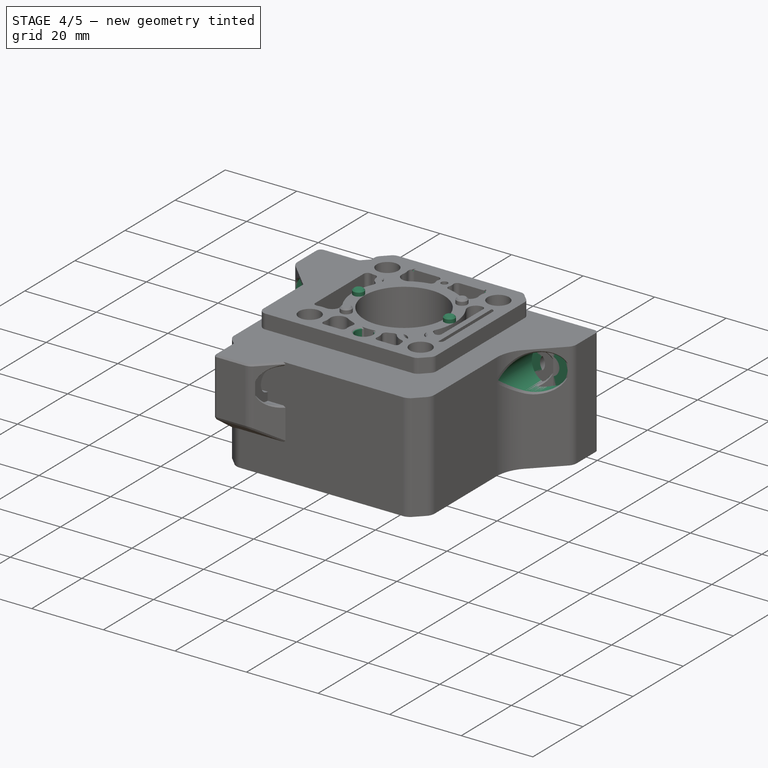
[diagram: stage 4 of 5 — iso view after this stage's code; geometry added in this stage tinted green]
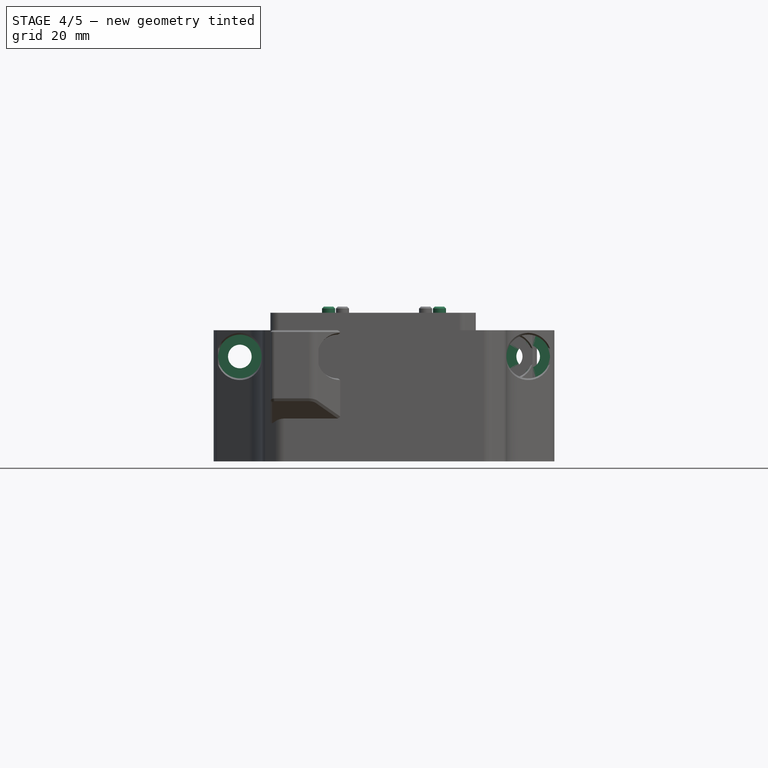
[diagram: stage 4 of 5 — front view after this stage's code; geometry added in this stage tinted green]
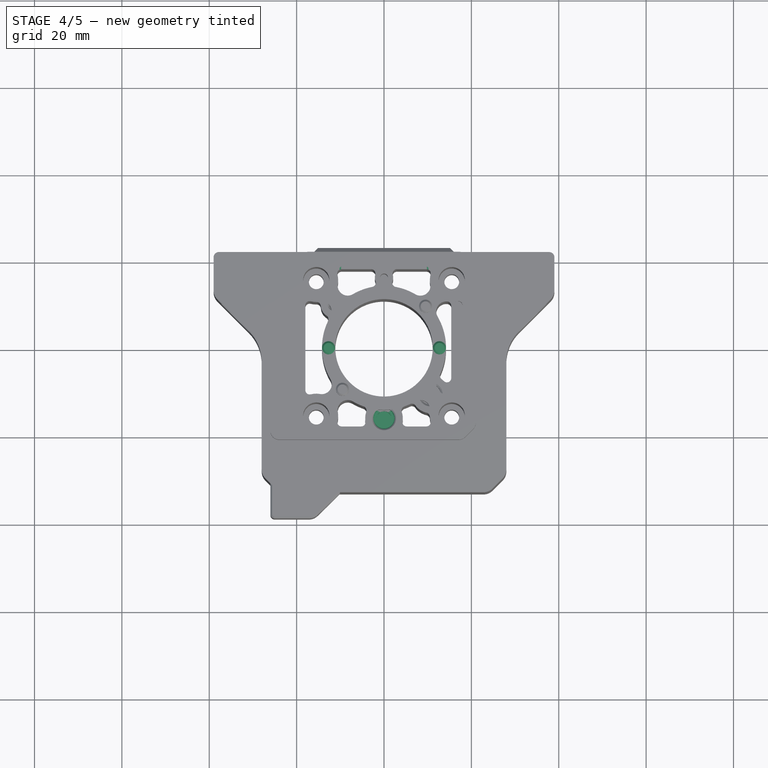
[diagram: stage 4 of 5 — top view after this stage's code; geometry added in this stage tinted green]
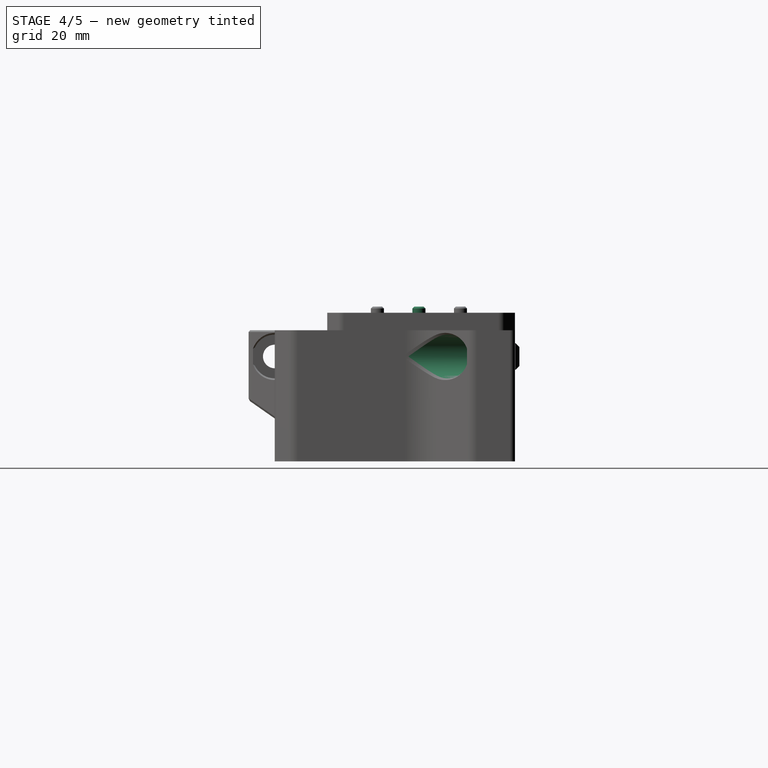
[diagram: stage 4 of 5 — right view after this stage's code; geometry added in this stage tinted green]
FEATURE [Sketcher::SketchObject] Sketch009  label="CoverHeatsetHole1Sketch"
  ArcFitTolerance = 1e-06
  AttachmentSupport = -> [Pocket010]
  ExternalTypes = [0]
  FullyConstrained = true
  MakeInternals = false
  MapMode = 5
  Placement = pos=(0,0,34) rot=(0,0,1;0rad)
  _ExternalGeoVersion = 1
  sketch-geometry (1):
    g0: Circle CenterX=0 CenterY=-16.1 CenterZ=0 NormalX=0 NormalY=0 NormalZ=1 AngleXU=0 Radius=2.35
  constraints (3):
    c: PointOnObject(g0,g-2)
    c: Diameter(g0) = 4.7
    c: DistanceY(g0,g-1) = 16.1
FEATURE [PartDesign::Pocket] Pocket011  label="CoverHeatsetHole1Pocket"
  BaseFeature = -> Pocket010
  Direction = (0,0,-1)
  Length = 5
  Length2 = 5
  Profile = -> Sketch009
  ReferenceAxis = -> Sketch009 [N_Axis]
  Refine = true
  SideType = 0
  Suppressed = false
  Type = 0
  Type2 = 0
FEATURE [Sketcher::SketchObject] Sketch010  label="CoverHeatsetHole2Sketch"
  ArcFitTolerance = 1e-06
  AttachmentSupport = -> [Pocket011]
  ExternalGeometry = -> [Pocket011]
  ExternalTypes = [0]
  FullyConstrained = true
  MakeInternals = false
  MapMode = 5
  Placement = pos=(0,0,34) rot=(0,0,1;0rad)
  _ExternalGeoVersion = 1
  sketch-geometry (1):
    g0: Circle CenterX=0 CenterY=-16.1 CenterZ=0 NormalX=0 NormalY=0 NormalZ=1 AngleXU=0 Radius=1.7
  constraints (2):
    c: Coincident(g0,g-3)
    c: Diameter(g0) = 3.4
FEATURE [PartDesign::Pocket] Pocket012  label="CoverHeatsetHole2Pocket"
  BaseFeature = -> Pocket011
  Direction = (0,0,-1)
  Length = 8
  Length2 = 5
  Profile = -> Sketch010
  ReferenceAxis = -> Sketch010 [N_Axis]
  Refine = true
  SideType = 0
  Suppressed = false
  Type = 0
  Type2 = 0
FEATURE [Sketcher::SketchObject] Sketch011  label="MotorBoltRecessSketch"
  ArcFitTolerance = 1e-06
  AttachmentSupport = -> [Pocket012]
  ExternalGeometry = -> [Pocket012]
  ExternalTypes = [0,0,0,0]
  FullyConstrained = true
  MakeInternals = false
  MapMode = 5
  Placement = pos=(0,0,34) rot=(0,0,1;0rad)
  _ExternalGeoVersion = 1
  sketch-geometry (4):
    g0: Circle CenterX=-15.5 CenterY=15.5 CenterZ=0 NormalX=0 NormalY=0 NormalZ=1 AngleXU=0 Radius=3
    g1: Circle CenterX=15.5 CenterY=15.5 CenterZ=0 NormalX=0 NormalY=0 NormalZ=1 AngleXU=0 Radius=3
    g2: Circle CenterX=15.5 CenterY=-15.5 CenterZ=0 NormalX=0 NormalY=0 NormalZ=1 AngleXU=0 Radius=3
    g3: Circle CenterX=-15.5 CenterY=-15.5 CenterZ=0 NormalX=0 NormalY=0 NormalZ=1 AngleXU=0 Radius=3
  constraints (8):
    c: Coincident(g0,g-3)
    c: Coincident(g1,g-4)
    c: Coincident(g2,g-5)
    c: Coincident(g3,g-6)
    c: Diameter(g1) = 6
    c: Equal(g1,g2)
    c: Equal(g2,g3)
    c: Equal(g3,g0)
FEATURE [PartDesign::Pocket] Pocket013  label="MotorBoltRecessPocket"
  BaseFeature = -> Pocket012
  Direction = (0,0,-1)
  Length = 21
  Length2 = 5
  Profile = -> Sketch011
  ReferenceAxis = -> Sketch011 [N_Axis]
  Refine = true
  SideType = 0
  Suppressed = false
  Type = 0
  Type2 = 0
FEATURE [Sketcher::SketchObject] Sketch012  label="CoverLocatorsSketch"
  ArcFitTolerance = 1e-06
  AttachmentSupport = -> [Pocket013]
  ExternalTypes = [0]
  FullyConstrained = true
  MakeInternals = false
  MapMode = 5
  Placement = pos=(0,0,34) rot=(0,0,1;0rad)
  _ExternalGeoVersion = 1
  sketch-geometry (2):
    g0: Circle CenterX=-12.7 CenterY=0 CenterZ=0 NormalX=0 NormalY=0 NormalZ=1 AngleXU=0 Radius=1.5
    g1: Circle CenterX=12.7 CenterY=0 CenterZ=0 NormalX=0 NormalY=0 NormalZ=1 AngleXU=0 Radius=1.5
  constraints (5):
    c: PointOnObject(g0,g-1)
    c: Diameter(g0) = 3
    c: Equal(g0,g1)
    c: Symmetric(g0,g1,g-1)
    c: DistanceX(g0,g1) = 25.4
FEATURE [PartDesign::Pad] Pad004  label="CoverLocatorsPad"
  BaseFeature = -> Pocket013
  Direction = (0,0,1)
  Length = 1.4
  Length2 = 10
  Profile = -> Sketch012
  ReferenceAxis = -> Sketch012 [N_Axis]
  Refine = true
  SideType = 0
  Suppressed = false
  Type = 0
  Type2 = 0
FEATURE [Sketcher::SketchObject] Sketch013  label="ExtrusionLocatorSketch"
  ArcFitTolerance = 1e-06
  AttachmentSupport = -> [Pad004]
  ExternalTypes = [0]
  FullyConstrained = true
  MakeInternals = false
  MapMode = 5
  Placement = pos=(0,22,0) rot=(0,0.707107,0.707107;3.14159rad)
  _ExternalGeoVersion = 1
  sketch-geometry (4):
    g0: LineSegment StartX=-16 StartY=27.05 StartZ=0 EndX=-16 EndY=20.95 EndZ=0
    g1: LineSegment StartX=-16 StartY=20.95 StartZ=0 EndX=16 EndY=20.95 EndZ=0
    g2: LineSegment StartX=16 StartY=20.95 StartZ=0 EndX=16 EndY=27.05 EndZ=0
    g3: LineSegment StartX=16 StartY=27.05 StartZ=0 EndX=-16 EndY=27.05 EndZ=0
  constraints (12):
    c: Coincident(g0,g1)
    c: Coincident(g1,g2)
    c: Coincident(g2,g3)
    c: Coincident(g3,g0)
    c: Vertical(g0)
    c: Vertical(g2)
    c: Horizontal(g1)
    c: Horizontal(g3)
    c: DistanceX(g3,g3) = 32
    c: DistanceY(g2,g2) = 6.1
    c: DistanceY(g-1,g1) = 20.95
    c: Distance(g1,g-2) = 16
FEATURE [PartDesign::Pad] Pad005  label="ExtrusionLocatorPad"
  BaseFeature = -> Pad004
  Direction = (0,1,-2e-16)
  Length = 1
  Length2 = 10
  Profile = -> Sketch013
  ReferenceAxis = -> Sketch013 [N_Axis]
  Refine = true
  SideType = 0
  Suppressed = false
  Type = 0
  Type2 = 0
FEATURE [Sketcher::SketchObject] Sketch014  label="ShallowSlotsSketch"
  ArcFitTolerance = 1e-06
  AttachmentSupport = -> [Pad005]
  ExternalGeometry = -> [Pad005]
  ExternalTypes = [0]
  FullyConstrained = true
  MakeInternals = false
  MapMode = 5
  Placement = pos=(0,0,34) rot=(0,0,1;0rad)
  _ExternalGeoVersion = 1
  sketch-geometry (8):
    g0: LineSegment StartX=-10.2 StartY=22 StartZ=0 EndX=-10.2 EndY=17.8 EndZ=0
    g1: LineSegment StartX=-10.2 StartY=17.8 StartZ=0 EndX=-9.8 EndY=17.8 EndZ=0
    g2: LineSegment StartX=-9.8 StartY=17.8 StartZ=0 EndX=-9.8 EndY=22 EndZ=0
    g3: LineSegment StartX=-9.8 StartY=22 StartZ=0 EndX=-10.2 EndY=22 EndZ=0
    g4: LineSegment StartX=9.8 StartY=22 StartZ=0 EndX=9.8 EndY=17.8 EndZ=0
    g5: LineSegment StartX=9.8 StartY=17.8 StartZ=0 EndX=10.2 EndY=17.8 EndZ=0
    g6: LineSegment StartX=10.2 StartY=17.8 StartZ=0 EndX=10.2 EndY=22 EndZ=0
    g7: LineSegment StartX=10.2 StartY=22 StartZ=0 EndX=9.8 EndY=22 EndZ=0
  constraints (23):
    c: Coincident(g0,g1)
    c: Coincident(g1,g2)
    c: Coincident(g2,g3)
    c: Coincident(g3,g0)
    c: Vertical(g0)
    c: Vertical(g2)
    c: Horizontal(g1)
    c: Horizontal(g3)
    c: PointOnObject(g0,g-3)
    c: Coincident(g4,g5)
    c: Coincident(g5,g6)
    c: Coincident(g6,g7)
    c: Coincident(g7,g4)
    c: Vertical(g4)
    c: Vertical(g6)
    c: Horizontal(g5)
    c: Horizontal(g7)
    c: Distance(g3,g3) = 0.4
    c: Equal(g3,g7)
    c: Symmetric(g2,g4,g-2)
    c: DistanceX(g2,g4) = 19.6
    c: DistanceY(g2,g2) = 4.2
    c: Equal(g2,g4)
FEATURE [PartDesign::Pocket] Pocket014  label="ShallowSlotsPocket"
  BaseFeature = -> Pad005
  Direction = (0,0,-1)
  Length = 0.4
  Length2 = 5
  Profile = -> Sketch014
  ReferenceAxis = -> Sketch014 [N_Axis]
  Refine = true
  SideType = 0
  Suppressed = false
  Type = 0
  Type2 = 0
FEATURE [PartDesign::Chamfer] Chamfer002  label="CoverLocatorsChamfer"
  Angle = 45
  Base = -> Pocket014 [Edge334,Edge338]
  BaseFeature = -> Pocket014
  ChamferType = 0
  FlipDirection = false
  Refine = true
  Size = 0.4
  Size2 = 1
  SupportTransform = false
  Suppressed = false
  UseAllEdges = false
FEATURE [PartDesign::Chamfer] Chamfer003  label="CoverHeatsetChamfer"
  Angle = 45
  Base = -> Chamfer002 [Edge56]
  BaseFeature = -> Chamfer002
  ChamferType = 0
  FlipDirection = false
  Refine = true
  Size = 0.4
  Size2 = 1
  SupportTransform = false
  Suppressed = false
  UseAllEdges = false
FEATURE [PartDesign::Chamfer] Chamfer004  label="ExtrusionLocatorChamfer"
  Angle = 45
  Base = -> Chamfer003 [Edge311,Edge309,Edge313,Edge314]
  BaseFeature = -> Chamfer003
  ChamferType = 0
  FlipDirection = false
  Refine = true
  Size = 0.9
  Size2 = 1
  SupportTransform = false
  Suppressed = false
  UseAllEdges = false
FEATURE [Sketcher::SketchObject] Sketch015  label="RearMountBoltRecessSketch"
  ArcFitTolerance = 1e-06
  AttachmentSupport = -> [Chamfer004]
  ExternalGeometry = -> [Chamfer004]
  ExternalTypes = [0,0]
  FullyConstrained = true
  MakeInternals = false
  MapMode = 5
  Placement = pos=(0,-33,0) rot=(1,0,0;1.5708rad)
  _ExternalGeoVersion = 1
  sketch-geometry (2):
    g0: Circle CenterX=-33 CenterY=24 CenterZ=0 NormalX=0 NormalY=0 NormalZ=1 AngleXU=0 Radius=5
    g1: Circle CenterX=33 CenterY=24 CenterZ=0 NormalX=0 NormalY=0 NormalZ=1 AngleXU=0 Radius=5
  constraints (4):
    c: Coincident(g0,g-3)
    c: Coincident(g1,g-4)
    c: Diameter(g0) = 10
    c: Equal(g0,g1)
FEATURE [PartDesign::Pocket] Pocket015  label="RearMountBoltRecessPocket"
  BaseFeature = -> Chamfer004
  Direction = (0,1,-2e-16)
  Length = 44
  Length2 = 5
  Profile = -> Sketch015
  ReferenceAxis = -> Sketch015 [N_Axis]
  Refine = true
  SideType = 0
  Suppressed = false
  Type = 0
  Type2 = 0
FEATURE [PartDesign::Chamfer] Chamfer005  label="RearMountBoltRecessChamfer"
  Angle = 45
  Base = -> Pocket015 [Edge340,Edge261,Edge341,Edge253]
  BaseFeature = -> Pocket015
  ChamferType = 0
  FlipDirection = false
  Refine = true
  Size = 0.4
  Size2 = 1
  SupportTransform = false
  Suppressed = false
  UseAllEdges = false
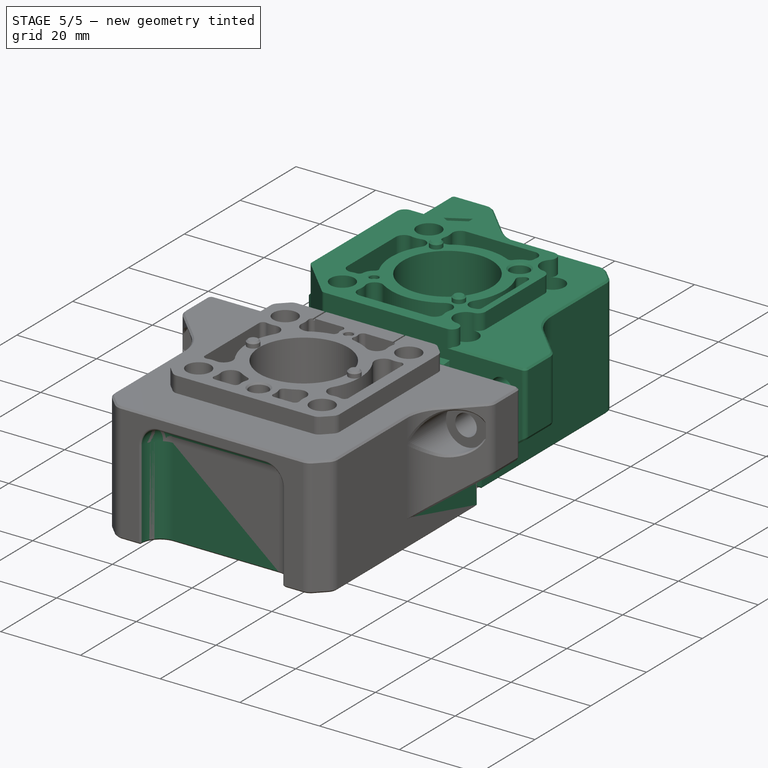
[diagram: stage 5 of 5 — iso view after this stage's code; geometry added in this stage tinted green]
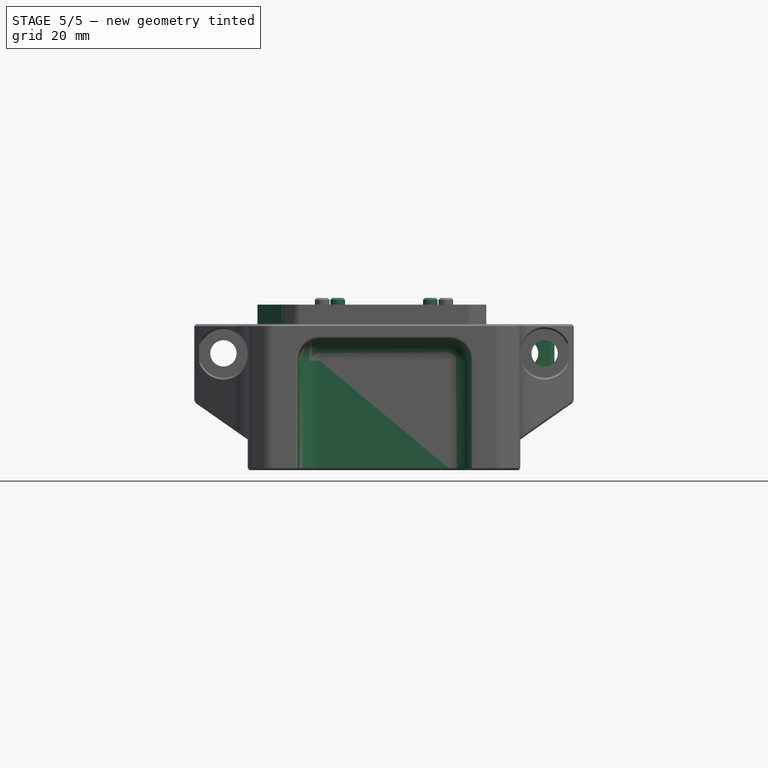
[diagram: stage 5 of 5 — front view after this stage's code; geometry added in this stage tinted green]
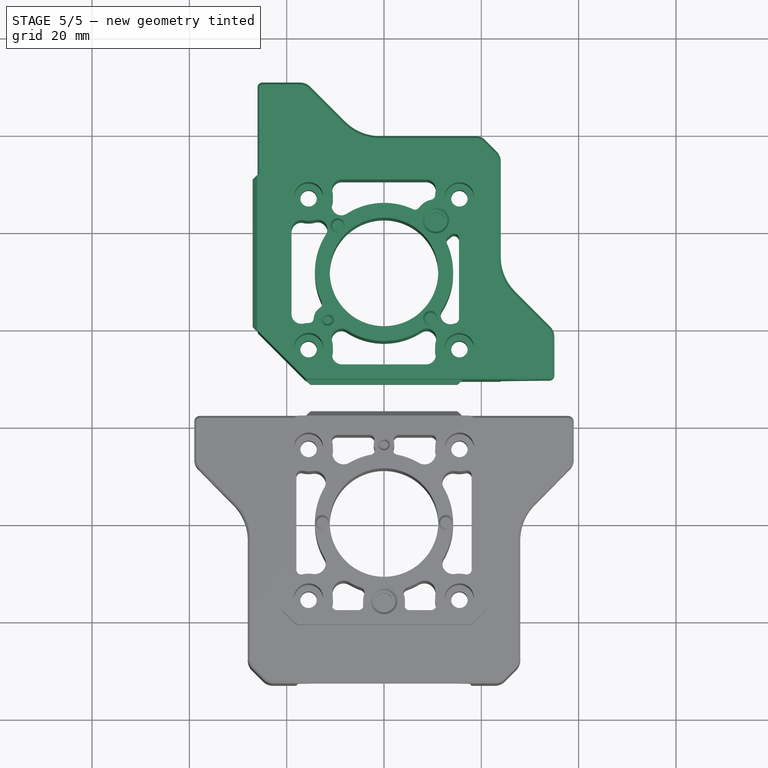
[diagram: stage 5 of 5 — top view after this stage's code; geometry added in this stage tinted green]
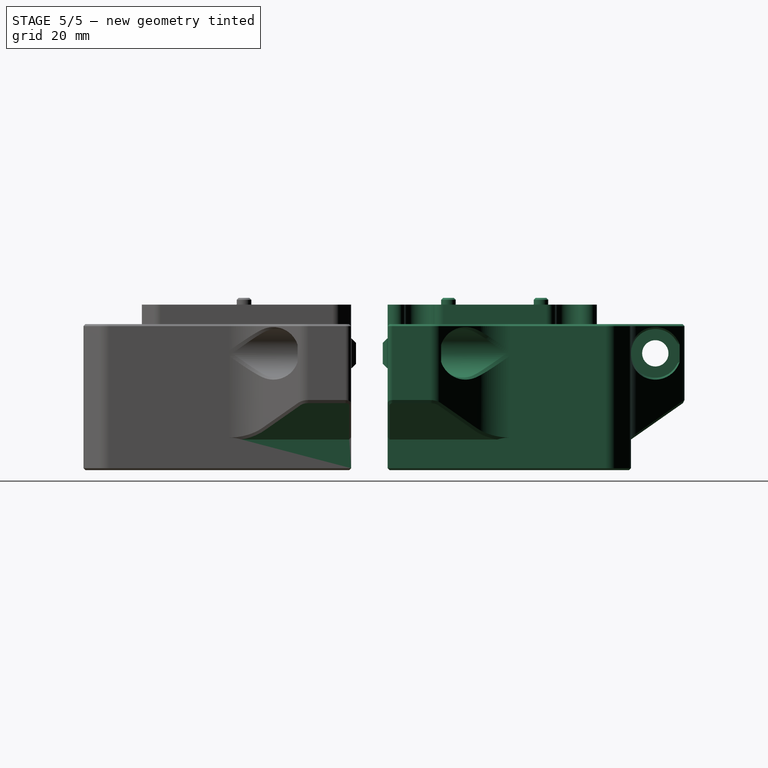
[diagram: stage 5 of 5 — right view after this stage's code; geometry added in this stage tinted green]
FEATURE [Sketcher::SketchObject] Sketch016
  ArcFitTolerance = 1e-06
  AttachmentSupport = -> [Chamfer005]
  ExternalGeometry = -> [Chamfer005]
  ExternalTypes = [0]
  FullyConstrained = true
  MakeInternals = false
  MapMode = 5
  Placement = pos=(0,-33,0) rot=(1,0,0;1.5708rad)
  _ExternalGeoVersion = 1
  sketch-geometry (4):
    g0: LineSegment StartX=-17.75 StartY=27 StartZ=0 EndX=-17.75 EndY=0 EndZ=0
    g1: LineSegment StartX=-17.75 StartY=0 StartZ=0 EndX=17.75 EndY=0 EndZ=0
    g2: LineSegment StartX=17.75 StartY=0 StartZ=0 EndX=17.75 EndY=27 EndZ=0
    g3: LineSegment StartX=17.75 StartY=27 StartZ=0 EndX=-17.75 EndY=27 EndZ=0
  constraints (11):
    c: Coincident(g0,g1)
    c: Coincident(g1,g2)
    c: Coincident(g2,g3)
    c: Coincident(g3,g0)
    c: Horizontal(g3)
    c: DistanceY(g2,g2) = 27
    c: Symmetric(g0,g1,g-2)
    c: Distance(g0,g-3) = 5
    c: PointOnObject(g0,g-1)
    c: Vertical(g0)
    c: Vertical(g2)
FEATURE [PartDesign::Pocket] Pocket016
  BaseFeature = -> Chamfer005
  Direction = (0,1,-2e-16)
  Length = 5
  Length2 = 5
  Profile = -> Sketch016
  ReferenceAxis = -> Sketch016 [N_Axis]
  Refine = true
  SideType = 0
  Suppressed = false
  Type = 0
  Type2 = 0
FEATURE [PartDesign::Fillet] Fillet
  Base = -> Pocket016 [Edge187,Edge186,Edge185,Edge184,Edge188]
  BaseFeature = -> Pocket016
  Radius = 4.49
  Refine = true
  SupportTransform = false
  Suppressed = false
  UseAllEdges = false
FEATURE [Sketcher::SketchObject] Sketch017
  ArcFitTolerance = 1e-06
  AttachmentSupport = -> [Fillet]
  ExternalGeometry = -> [Fillet]
  ExternalTypes = [0,0,0,0,0]
  FullyConstrained = true
  MakeInternals = false
  MapMode = 5
  Placement = pos=(0,22,0) rot=(0,0.707107,0.707107;3.14159rad)
  _ExternalGeoVersion = 1
  sketch-geometry (8):
    g0: LineSegment StartX=-39 StartY=-3e-16 StartZ=0 EndX=-39 EndY=14 EndZ=0
    g1: LineSegment StartX=-28 StartY=-5.3e-15 StartZ=0 EndX=-39 EndY=-3e-16 EndZ=0
    g2: LineSegment StartX=39 StartY=0 StartZ=0 EndX=28 EndY=0 EndZ=0
    g3: LineSegment StartX=28 StartY=6.29772 StartZ=0 EndX=39 EndY=14 EndZ=0
    g4: LineSegment StartX=39 StartY=14 StartZ=0 EndX=39 EndY=0 EndZ=0
    g5: LineSegment StartX=-39 StartY=14 StartZ=0 EndX=-28 EndY=6.29772 EndZ=0
    g6: LineSegment StartX=-28 StartY=6.29772 StartZ=0 EndX=-28 EndY=-5.3e-15 EndZ=0
    g7: LineSegment StartX=28 StartY=0 StartZ=0 EndX=28 EndY=6.29772 EndZ=0
  constraints (21):
    c: Vertical(g0)
    c: Coincident(g1,g0)
    c: PointOnObject(g2,g-1)
    c: Coincident(g4,g3)
    c: Coincident(g4,g2)
    c: Vertical(g4)
    c: Coincident(g5,g0)
    c: Coincident(g2,g-4)
    c: Coincident(g0,g-3)
    c: DistanceY(g0,g-5) = 10
    c: Horizontal(g0,g3)
    c: Equal(g5,g3)
    c: Coincident(g1,g-7)
    c: Coincident(g6,g5)
    c: Coincident(g6,g1)
    c: Vertical(g6)
    c: Angle(g5,g1) = 0.610865
    c: Coincident(g7,g2)
    c: Coincident(g7,g3)
    c: Vertical(g7)
    c: Equal(g1,g2)
FEATURE [PartDesign::Pocket] Pocket017
  BaseFeature = -> Fillet
  Direction = (0,-1,2e-16)
  Length = 5
  Length2 = 5
  Profile = -> Sketch017
  ReferenceAxis = -> Sketch017 [N_Axis]
  Refine = true
  SideType = 0
  Suppressed = false
  Type = 1
  Type2 = 0
FEATURE [PartDesign::Fillet] Fillet001
  Base = -> Pocket017 [Edge77]
  BaseFeature = -> Pocket017
  Radius = 0.5
  Refine = true
  SupportTransform = false
  Suppressed = false
  UseAllEdges = false
FEATURE [PartDesign::Chamfer] Chamfer006
  Angle = 45
  Base = -> Fillet001 [Edge54,Edge19,Edge20,Edge30,Edge36,Edge57,Edge71,Edge64,Edge47,Edge45,Edge39]
  BaseFeature = -> Fillet001
  ChamferType = 0
  FlipDirection = false
  Refine = true
  Size = 0.4
  Size2 = 1
  SupportTransform = false
  Suppressed = false
  UseAllEdges = false
FEATURE [PartDesign::Chamfer] Chamfer007
  Angle = 45
  Base = -> Chamfer006 [Edge83]
  BaseFeature = -> Chamfer006
  ChamferType = 0
  FlipDirection = false
  Refine = true
  Size = 0.4
  Size2 = 1
  SupportTransform = false
  Suppressed = false
  UseAllEdges = false
FEATURE [PartDesign::Chamfer] Chamfer008
  Angle = 45
  Base = -> Chamfer007 [Edge161,Edge155]
  BaseFeature = -> Chamfer007
  ChamferType = 0
  FlipDirection = false
  Refine = true
  Size = 0.4
  Size2 = 1
  SupportTransform = false
  Suppressed = false
  UseAllEdges = false
FEATURE [PartDesign::Chamfer] Chamfer009
  Angle = 45
  Base = -> Chamfer008 [Edge9,Edge41]
  BaseFeature = -> Chamfer008
  ChamferType = 0
  FlipDirection = false
  Refine = true
  Size = 0.4
  Size2 = 1
  SupportTransform = false
  Suppressed = false
  UseAllEdges = false
FEATURE [App::Link] Link  label="z_stepper_left_coupler_link"
  LinkedObject = -> Body003
FEATURE [Part::Mirroring] Part__Mirroring  label="right_coupler"
  Base = (0,0,0)
  Normal = (0,1,0)
  Placement = pos=(0,51.5,0) rot=(0,0,1;0rad)
  Source = -> Link
FEATURE [Sketcher::SketchObject] Sketch037
  ArcFitTolerance = 1e-06
  AttachmentSupport = -> [Chamfer009]
  ExternalGeometry = -> [Chamfer009]
  ExternalTypes = [0]
  FullyConstrained = true
  MakeInternals = false
  MapMode = 5
  Placement = pos=(0,0,34) rot=(0,0,1;0rad)
  _ExternalGeoVersion = 1
  sketch-geometry (1):
    g0: Circle CenterX=0 CenterY=16.1 CenterZ=0 NormalX=0 NormalY=0 NormalZ=1 AngleXU=0 Radius=1.1
  constraints (2):
    c: Coincident(g0,g-3)
    c: Diameter(g0) = 2.2
FEATURE [PartDesign::Pocket] Pocket031
  BaseFeature = -> Chamfer009
  Direction = (0,0,-1)
  Length = 1
  Length2 = 5
  Profile = -> Sketch037
  ReferenceAxis = -> Sketch037 [N_Axis]
  Refine = true
  SideType = 0
  Suppressed = false
  Type = 0
  Type2 = 0
FEATURE [PartDesign::Chamfer] Chamfer016
  Angle = 45
  Base = -> Pocket031 [Edge637,Edge277]
  BaseFeature = -> Pocket031
  ChamferType = 0
  FlipDirection = false
  Refine = true
  Size = 0.19
  Size2 = 1
  SupportTransform = false
  Suppressed = false
  UseAllEdges = false
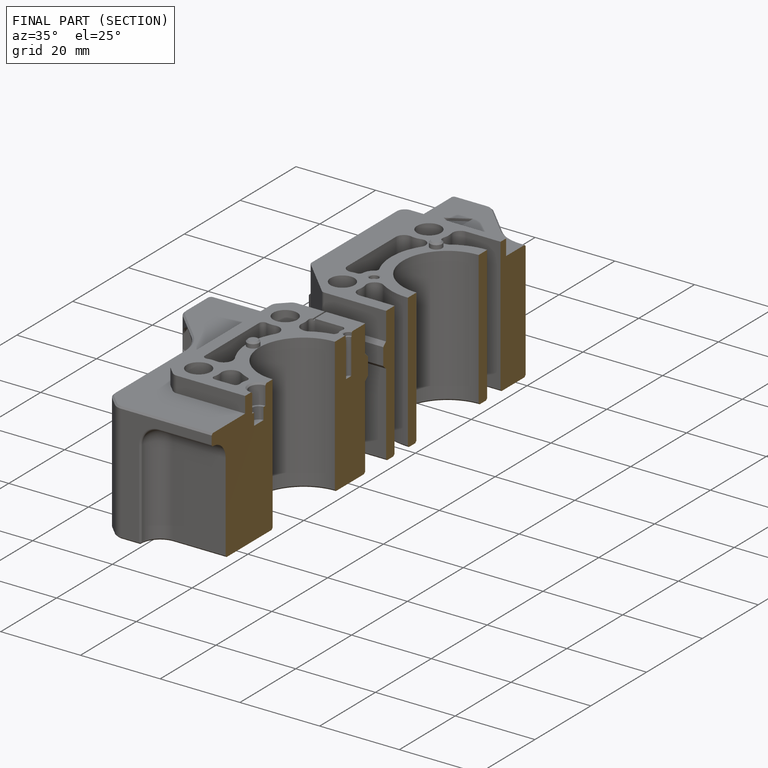
[diagram: finished part — half-section view (interior)]
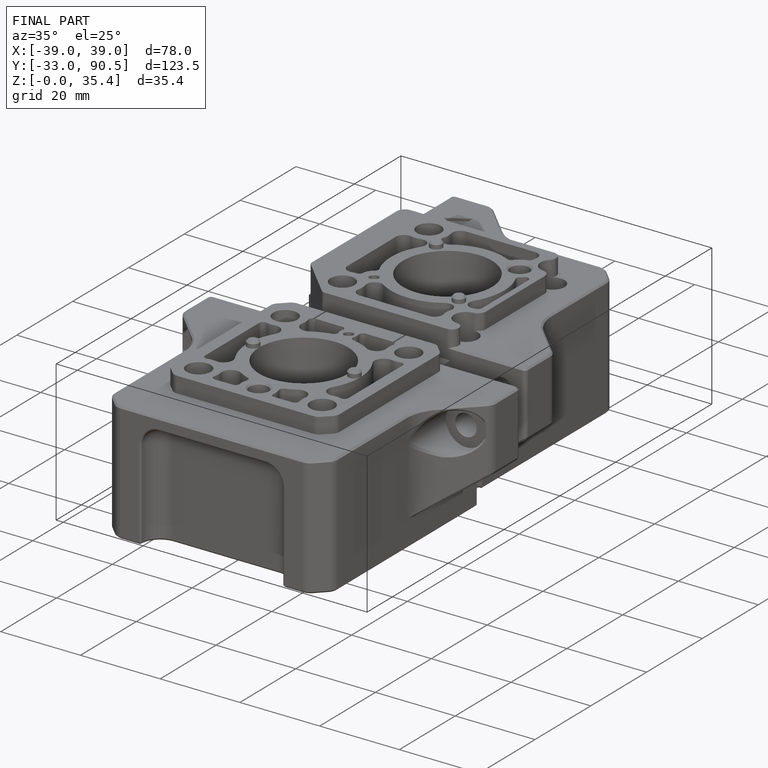
[diagram: finished part — iso view with bounding-box wireframe]
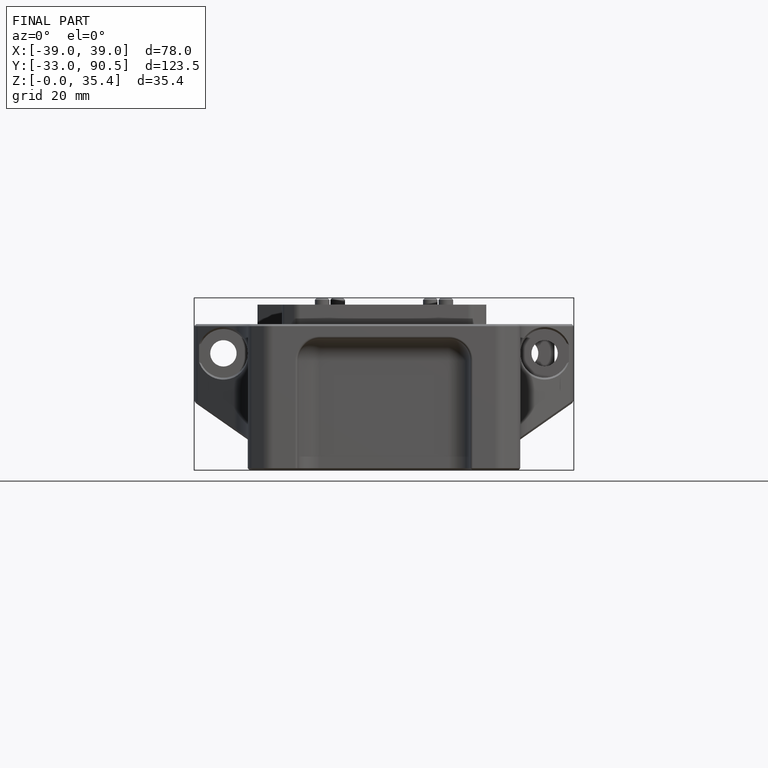
[diagram: finished part — front view with bounding-box wireframe]
